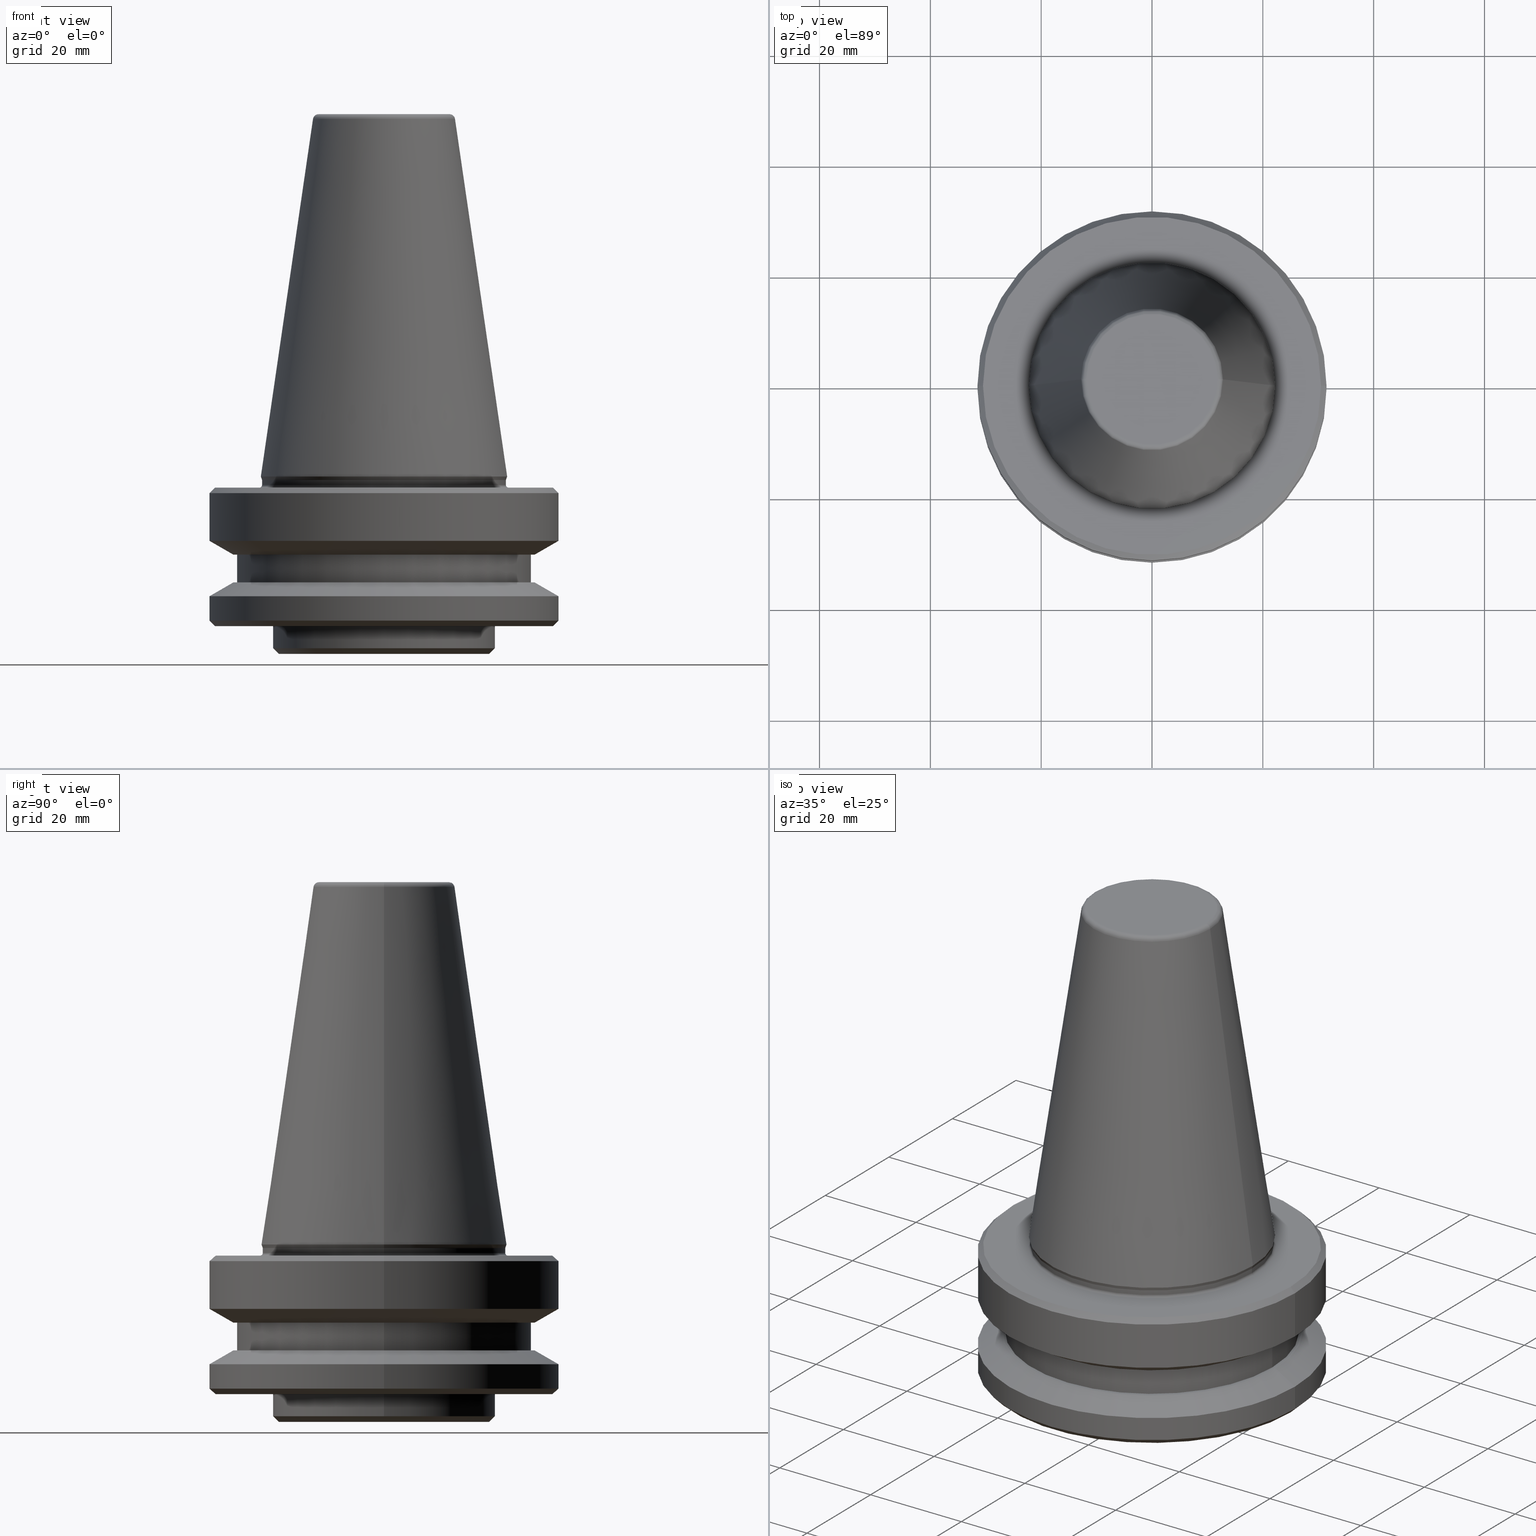
[diagram: canonical four-view strip — front | top / right | iso, engineering-drawing reading convention]
A machine part, canonical four-view strip (front | top / right | iso — engineering-drawing reading convention). The complete STEP part file that produces these views, byte-faithful:
ISO-10303-21;
HEADER;
FILE_DESCRIPTION (( 'STEP AP203' ),
    '1' );
FILE_NAME ('BT40 ER 32A 32 AD-6.3G 15000 SL.STEP',
    '2019-05-22T03:47:47',
    ( '' ),
    ( '' ),
    'SwSTEP 2.0',
    'SolidWorks 2014',
    '' );
FILE_SCHEMA (( 'CONFIG_CONTROL_DESIGN' ));
ENDSEC;

DATA;
#1 = ORIENTED_EDGE ( 'NONE', *, *, #984, .F. ) ;
#2 = CARTESIAN_POINT ( 'NONE',  ( 0.0000000000000000000, 30.49999915511084900, -27.00000000000551000 ) ) ;
#3 = CARTESIAN_POINT ( 'NONE',  ( -11.82266927716813000, 1.508450817090343500E-015, 65.39999999999945100 ) ) ;
#4 = VECTOR ( 'NONE', #241, 1000.000000000000000 ) ;
#5 = VECTOR ( 'NONE', #141, 1000.000000000000000 ) ;
#6 = EDGE_CURVE ( 'NONE', #342, #223, #177, .T. ) ;
#7 = CARTESIAN_POINT ( 'NONE',  ( 0.0000000000000000000, 18.99749373435000200, -31.99561889958393800 ) ) ;
#8 = DIRECTION ( 'NONE',  ( -0.0000000000000000000, -0.0000000000000000000, 1.000000000000000000 ) ) ;
#9 = DIRECTION ( 'NONE',  ( 1.000000000000000000, 0.0000000000000000000, 0.0000000000000000000 ) ) ;
#10 = CC_DESIGN_PERSON_AND_ORGANIZATION_ASSIGNMENT ( #92, #943, ( #855 ) ) ;
#11 = CARTESIAN_POINT ( 'NONE',  ( 0.0000000000000000000, 0.0000000000000000000, -26.00000000000535000 ) ) ;
#12 = APPROVAL_ROLE ( '' ) ;
#13 = VERTEX_POINT ( 'NONE', #213 ) ;
#14 = SECURITY_CLASSIFICATION_LEVEL ( 'unclassified' ) ;
#15 = DIRECTION ( 'NONE',  ( 0.8660254037844413700, 0.0000000000000000000, 0.4999999999999952800 ) ) ;
#16 = ORIENTED_EDGE ( 'NONE', *, *, #367, .F. ) ;
#17 = DIRECTION ( 'NONE',  ( -0.0000000000000000000, -0.0000000000000000000, 1.000000000000000000 ) ) ;
#18 = ORIENTED_EDGE ( 'NONE', *, *, #546, .T. ) ;
#19 = DIRECTION ( 'NONE',  ( 1.000000000000000000, 0.0000000000000000000, 0.0000000000000000000 ) ) ;
#20 = AXIS2_PLACEMENT_3D ( 'NONE', #306, #633, #231 ) ;
#21 = CIRCLE ( 'NONE', #917, 0.5000000000000559600 ) ;
#22 = AXIS2_PLACEMENT_3D ( 'NONE', #815, #612, #372 ) ;
#23 = DIRECTION ( 'NONE',  ( -0.0000000000000000000, -0.0000000000000000000, 1.000000000000000000 ) ) ;
#24 = CARTESIAN_POINT ( 'NONE',  ( 0.0000000000000000000, 0.0000000000000000000, -31.99561889958393800 ) ) ;
#25 = DIRECTION ( 'NONE',  ( -0.0000000000000000000, -0.0000000000000000000, 1.000000000000000000 ) ) ;
#26 = CARTESIAN_POINT ( 'NONE',  ( 0.0000000000000000000, 0.0000000000000000000, 0.0000000000000000000 ) ) ;
#27 = EDGE_LOOP ( 'NONE', ( #424, #263, #83, #907 ) ) ;
#28 = DIRECTION ( 'NONE',  ( -0.0000000000000000000, -0.0000000000000000000, 1.000000000000000000 ) ) ;
#29 = CARTESIAN_POINT ( 'NONE',  ( 0.0000000000000000000, 0.0000000000000000000, 65.39999999999945100 ) ) ;
#30 = LINE ( 'NONE', #798, #4 ) ;
#31 = DIRECTION ( 'NONE',  ( -1.000000000000000000, 0.0000000000000000000, -0.0000000000000000000 ) ) ;
#32 = EDGE_LOOP ( 'NONE', ( #494, #262, #782, #604 ) ) ;
#33 = LINE ( 'NONE', #559, #825 ) ;
#34 = AXIS2_PLACEMENT_3D ( 'NONE', #118, #506, #271 ) ;
#35 = EDGE_CURVE ( 'NONE', #527, #62, #381, .T. ) ;
#36 = DIRECTION ( 'NONE',  ( -1.000000000000000000, 0.0000000000000000000, 0.0000000000000000000 ) ) ;
#37 = DIRECTION ( 'NONE',  ( 1.000000000000000000, 0.0000000000000000000, 0.0000000000000000000 ) ) ;
#38 = DIRECTION ( 'NONE',  ( 0.7071067811865414700, 0.0000000000000000000, 0.7071067811865536800 ) ) ;
#39 = ORIENTED_EDGE ( 'NONE', *, *, #70, .T. ) ;
#40 = AXIS2_PLACEMENT_3D ( 'NONE', #80, #406, #364 ) ;
#41 = ORIENTED_EDGE ( 'NONE', *, *, #465, .T. ) ;
#42 = MECHANICAL_CONTEXT ( 'NONE', #795, 'mechanical' ) ;
#43 = EDGE_LOOP ( 'NONE', ( #75, #661, #72, #745 ) ) ;
#44 = CYLINDRICAL_SURFACE ( 'NONE', #702, 26.49999999999996800 ) ;
#45 = DIRECTION ( 'NONE',  ( -0.0000000000000000000, -0.0000000000000000000, 1.000000000000000000 ) ) ;
#46 = EDGE_CURVE ( 'NONE', #403, #274, #564, .T. ) ;
#47 = CARTESIAN_POINT ( 'NONE',  ( 0.0000000000000000000, 0.0000000000000000000, -14.10000000000089000 ) ) ;
#48 = LOCAL_TIME ( 9, 17, 47.00000000000000000, #243 ) ;
#49 = AXIS2_PLACEMENT_3D ( 'NONE', #762, #252, #726 ) ;
#50 = VERTEX_POINT ( 'NONE', #351 ) ;
#51 = EDGE_LOOP ( 'NONE', ( #404, #921, #39, #500 ) ) ;
#52 = EDGE_CURVE ( 'NONE', #195, #274, #156, .T. ) ;
#53 = CARTESIAN_POINT ( 'NONE',  ( 0.0000000000000000000, 0.0000000000000000000, 4.440892098500626200E-013 ) ) ;
#54 = CIRCLE ( 'NONE', #998, 30.49999999999997200 ) ;
#55 = CONICAL_SURFACE ( 'NONE', #718, 22.22500000000016100, 0.1448138077623193600 ) ;
#56 = ADVANCED_FACE ( 'NONE', ( #355 ), #739, .F. ) ;
#57 = CARTESIAN_POINT ( 'NONE',  ( -27.16962617403466900, 0.0000000000000000000, -19.10000077622331500 ) ) ;
#58 = AXIS2_PLACEMENT_3D ( 'NONE', #2, #561, #685 ) ;
#59 = ADVANCED_FACE ( 'NONE', ( #334 ), #924, .T. ) ;
#60 = ORIENTED_EDGE ( 'NONE', *, *, #540, .F. ) ;
#61 = CC_DESIGN_PERSON_AND_ORGANIZATION_ASSIGNMENT ( #886, #473, ( #855 ) ) ;
#62 = VERTEX_POINT ( 'NONE', #856 ) ;
#63 = VERTEX_POINT ( 'NONE', #593 ) ;
#64 = FACE_OUTER_BOUND ( 'NONE', #769, .T. ) ;
#65 = DIRECTION ( 'NONE',  ( 0.0000000000000000000, 0.0000000000000000000, -1.000000000000000000 ) ) ;
#66 = CARTESIAN_POINT ( 'NONE',  ( 0.0000000000000000000, 0.0000000000000000000, -14.10000000000089000 ) ) ;
#67 = AXIS2_PLACEMENT_3D ( 'NONE', #677, #218, #97 ) ;
#68 = PLANE ( 'NONE',  #189 ) ;
#69 = CALENDAR_DATE ( 2019, 22, 5 ) ;
#70 = EDGE_CURVE ( 'NONE', #247, #428, #713, .T. ) ;
#71 = ORIENTED_EDGE ( 'NONE', *, *, #222, .F. ) ;
#72 = ORIENTED_EDGE ( 'NONE', *, *, #147, .F. ) ;
#73 = DIRECTION ( 'NONE',  ( -0.0000000000000000000, -0.0000000000000000000, 1.000000000000000000 ) ) ;
#74 = VECTOR ( 'NONE', #932, 1000.000000000000000 ) ;
#75 = ORIENTED_EDGE ( 'NONE', *, *, #940, .T. ) ;
#76 = CIRCLE ( 'NONE', #82, 21.99999999999990800 ) ;
#77 = CARTESIAN_POINT ( 'NONE',  ( 31.49999915511100200, 0.0000000000000000000, -21.60014278253921600 ) ) ;
#78 = DIRECTION ( 'NONE',  ( 1.224646799147353200E-016, 1.000000000000000000, 0.0000000000000000000 ) ) ;
#79 = AXIS2_PLACEMENT_3D ( 'NONE', #885, #966, #420 ) ;
#80 = CARTESIAN_POINT ( 'NONE',  ( 22.40000000000019800, 0.0000000000000000000, -0.6887132116606409200 ) ) ;
#81 = VECTOR ( 'NONE', #38, 1000.000000000000000 ) ;
#82 = AXIS2_PLACEMENT_3D ( 'NONE', #670, #196, #813 ) ;
#83 = ORIENTED_EDGE ( 'NONE', *, *, #952, .T. ) ;
#84 = DIRECTION ( 'NONE',  ( -0.0000000000000000000, -0.0000000000000000000, 1.000000000000000000 ) ) ;
#85 = ORIENTED_EDGE ( 'NONE', *, *, #104, .T. ) ;
#86 = ORIENTED_EDGE ( 'NONE', *, *, #810, .F. ) ;
#87 = CONICAL_SURFACE ( 'NONE', #398, 18.99749373435000200, 0.7853981633974482800 ) ;
#88 = AXIS2_PLACEMENT_3D ( 'NONE', #811, #317, #863 ) ;
#89 = DIRECTION ( 'NONE',  ( -1.000000000000000000, 0.0000000000000000000, -0.0000000000000000000 ) ) ;
#90 = VERTEX_POINT ( 'NONE', #93 ) ;
#91 =( LENGTH_UNIT ( ) NAMED_UNIT ( * ) SI_UNIT ( .MILLI., .METRE. ) );
#92 = PERSON_AND_ORGANIZATION ( #592, #396 ) ;
#93 = CARTESIAN_POINT ( 'NONE',  ( 22.02412295168571200, 0.0000000000000000000, -0.5519051543304703800 ) ) ;
#94 = DIRECTION ( 'NONE',  ( -0.0000000000000000000, -0.0000000000000000000, 1.000000000000000000 ) ) ;
#95 = ORIENTED_EDGE ( 'NONE', *, *, #200, .T. ) ;
#96 = DIRECTION ( 'NONE',  ( -0.0000000000000000000, -0.0000000000000000000, 1.000000000000000000 ) ) ;
#97 = DIRECTION ( 'NONE',  ( 1.000000000000000000, 0.0000000000000000000, 0.0000000000000000000 ) ) ;
#98 = ORIENTED_EDGE ( 'NONE', *, *, #46, .F. ) ;
#99 = CARTESIAN_POINT ( 'NONE',  ( 0.0000000000000000000, 11.82266927716813000, 65.39999999999946600 ) ) ;
#100 = AXIS2_PLACEMENT_3D ( 'NONE', #445, #696, #934 ) ;
#101 = CYLINDRICAL_SURFACE ( 'NONE', #680, 31.50000000000008500 ) ;
#102 = VERTEX_POINT ( 'NONE', #468 ) ;
#103 = VECTOR ( 'NONE', #384, 1000.000000000000000 ) ;
#104 = EDGE_CURVE ( 'NONE', #63, #303, #128, .T. ) ;
#105 = DIRECTION ( 'NONE',  ( 0.0000000000000000000, -1.000000000000000000, 0.0000000000000000000 ) ) ;
#106 = TOROIDAL_SURFACE ( 'NONE', #34, 22.49999999999996400, 0.5000000000000559600 ) ;
#107 = DIRECTION ( 'NONE',  ( 0.0000000000000000000, 0.0000000000000000000, -1.000000000000000000 ) ) ;
#108 = EDGE_CURVE ( 'NONE', #842, #318, #975, .T. ) ;
#109 = DIRECTION ( 'NONE',  ( 1.000000000000000000, 0.0000000000000000000, 0.0000000000000000000 ) ) ;
#110 = ORIENTED_EDGE ( 'NONE', *, *, #440, .T. ) ;
#111 = CIRCLE ( 'NONE', #570, 22.00000000000002100 ) ;
#112 = DIRECTION ( 'NONE',  ( -0.0000000000000000000, -0.0000000000000000000, 1.000000000000000000 ) ) ;
#113 = VERTEX_POINT ( 'NONE', #758 ) ;
#114 = LINE ( 'NONE', #467, #501 ) ;
#115 = SECURITY_CLASSIFICATION ( '', '', #14 ) ;
#116 = ORIENTED_EDGE ( 'NONE', *, *, #520, .T. ) ;
#117 = DIRECTION ( 'NONE',  ( 0.7071067811866259500, 8.659560562355891800E-017, -0.7071067811864690800 ) ) ;
#118 = CARTESIAN_POINT ( 'NONE',  ( 0.0000000000000000000, 0.0000000000000000000, -1.500000000001389100 ) ) ;
#119 = COORDINATED_UNIVERSAL_TIME_OFFSET ( 5, 30, .AHEAD. ) ;
#120 = DIRECTION ( 'NONE',  ( 1.000000000000000000, 0.0000000000000000000, 0.0000000000000000000 ) ) ;
#121 = AXIS2_PLACEMENT_3D ( 'NONE', #298, #736, #838 ) ;
#122 = CARTESIAN_POINT ( 'NONE',  ( 0.0000000000000000000, 0.0000000000000000000, -27.00000000000552100 ) ) ;
#123 = EDGE_LOOP ( 'NONE', ( #219, #560, #60, #723 ) ) ;
#124 = AXIS2_PLACEMENT_3D ( 'NONE', #459, #915, #827 ) ;
#125 = ORIENTED_EDGE ( 'NONE', *, *, #933, .T. ) ;
#126 = DIRECTION ( 'NONE',  ( -0.0000000000000000000, -0.0000000000000000000, 1.000000000000000000 ) ) ;
#127 = LINE ( 'NONE', #471, #487 ) ;
#128 = CIRCLE ( 'NONE', #348, 19.99999999999998900 ) ;
#129 = CARTESIAN_POINT ( 'NONE',  ( 0.0000000000000000000, 0.0000000000000000000, 102.7767479270557900 ) ) ;
#130 = EDGE_CURVE ( 'NONE', #303, #277, #304, .T. ) ;
#131 = ADVANCED_FACE ( 'NONE', ( #687 ), #282, .T. ) ;
#132 = CIRCLE ( 'NONE', #930, 22.02412295168571200 ) ;
#133 = DIRECTION ( 'NONE',  ( -0.0000000000000000000, -0.0000000000000000000, 1.000000000000000000 ) ) ;
#134 = CARTESIAN_POINT ( 'NONE',  ( 0.0000000000000000000, 0.0000000000000000000, -2.000000000001556100 ) ) ;
#135 = AXIS2_PLACEMENT_3D ( 'NONE', #129, #254, #861 ) ;
#136 = DESIGN_CONTEXT ( 'detailed design', #785, 'design' ) ;
#137 = ORIENTED_EDGE ( 'NONE', *, *, #756, .F. ) ;
#138 = AXIS2_PLACEMENT_3D ( 'NONE', #410, #311, #720 ) ;
#139 = ADVANCED_FACE ( 'NONE', ( #897 ), #464, .T. ) ;
#140 = EDGE_LOOP ( 'NONE', ( #484, #803, #650, #768 ) ) ;
#141 = DIRECTION ( 'NONE',  ( -0.3420201433255195500, 4.188538737675165100E-017, 0.9396926207859627200 ) ) ;
#142 = LINE ( 'NONE', #714, #639 ) ;
#143 = CIRCLE ( 'NONE', #233, 26.49999999999996800 ) ;
#144 = DIRECTION ( 'NONE',  ( 1.000000000000000000, 0.0000000000000000000, 0.0000000000000000000 ) ) ;
#145 = EDGE_LOOP ( 'NONE', ( #530, #437, #735, #1 ) ) ;
#146 = ADVANCED_FACE ( 'NONE', ( #490 ), #55, .T. ) ;
#147 = EDGE_CURVE ( 'NONE', #675, #586, #253, .T. ) ;
#148 = DIRECTION ( 'NONE',  ( -0.0000000000000000000, -0.0000000000000000000, 1.000000000000000000 ) ) ;
#149 = LOCAL_TIME ( 9, 17, 47.00000000000000000, #347 ) ;
#150 = ORIENTED_EDGE ( 'NONE', *, *, #159, .F. ) ;
#151 = CARTESIAN_POINT ( 'NONE',  ( -31.50000000000008500, 3.857637417314172900E-015, 102.7767479270557900 ) ) ;
#152 = EDGE_CURVE ( 'NONE', #780, #259, #662, .T. ) ;
#153 = ORIENTED_EDGE ( 'NONE', *, *, #159, .T. ) ;
#154 = VECTOR ( 'NONE', #419, 1000.000000000000000 ) ;
#155 = PLANE ( 'NONE',  #737 ) ;
#156 = LINE ( 'NONE', #1000, #949 ) ;
#157 = AXIS2_PLACEMENT_3D ( 'NONE', #959, #148, #972 ) ;
#158 = CARTESIAN_POINT ( 'NONE',  ( 0.0000000000000000000, 0.0000000000000000000, 4.440892098500626200E-013 ) ) ;
#159 = EDGE_CURVE ( 'NONE', #403, #223, #541, .T. ) ;
#160 = LINE ( 'NONE', #245, #568 ) ;
#161 = CARTESIAN_POINT ( 'NONE',  ( -31.49999915511100200, 3.857637313845101900E-015, -26.00000000000535000 ) ) ;
#162 = ORIENTED_EDGE ( 'NONE', *, *, #165, .F. ) ;
#163 = ORIENTED_EDGE ( 'NONE', *, *, #6, .F. ) ;
#164 = ORIENTED_EDGE ( 'NONE', *, *, #108, .F. ) ;
#165 = EDGE_CURVE ( 'NONE', #873, #818, #76, .T. ) ;
#166 = LINE ( 'NONE', #866, #365 ) ;
#167 = FACE_BOUND ( 'NONE', #234, .T. ) ;
#168 = DIRECTION ( 'NONE',  ( -0.0000000000000000000, -0.0000000000000000000, 1.000000000000000000 ) ) ;
#169 = CC_DESIGN_PERSON_AND_ORGANIZATION_ASSIGNMENT ( #679, #427, ( #115 ) ) ;
#170 = CALENDAR_DATE ( 2019, 22, 5 ) ;
#171 = ORIENTED_EDGE ( 'NONE', *, *, #590, .F. ) ;
#172 = AXIS2_PLACEMENT_3D ( 'NONE', #688, #105, #941 ) ;
#173 = CARTESIAN_POINT ( 'NONE',  ( 26.49999999999996800, 0.0000000000000000000, 102.7767479270557900 ) ) ;
#174 = ORIENTED_EDGE ( 'NONE', *, *, #382, .F. ) ;
#175 = LINE ( 'NONE', #361, #154 ) ;
#176 = EDGE_CURVE ( 'NONE', #586, #675, #848, .T. ) ;
#177 = CIRCLE ( 'NONE', #296, 31.50000000000008500 ) ;
#178 = DIRECTION ( 'NONE',  ( 1.000000000000000000, 0.0000000000000000000, 0.0000000000000000000 ) ) ;
#179 = CARTESIAN_POINT ( 'NONE',  ( 0.0000000000000000000, 0.0000000000000000000, 102.7767479270557900 ) ) ;
#180 = DIRECTION ( 'NONE',  ( -0.0000000000000000000, -0.0000000000000000000, 1.000000000000000000 ) ) ;
#181 = ORIENTED_EDGE ( 'NONE', *, *, #546, .F. ) ;
#182 = ORIENTED_EDGE ( 'NONE', *, *, #457, .T. ) ;
#183 = DIRECTION ( 'NONE',  ( 1.000000000000000000, 0.0000000000000000000, 0.0000000000000000000 ) ) ;
#184 = CARTESIAN_POINT ( 'NONE',  ( 0.0000000000000000000, 0.0000000000000000000, 65.39999999999945100 ) ) ;
#185 = AXIS2_PLACEMENT_3D ( 'NONE', #589, #126, #721 ) ;
#186 = FACE_OUTER_BOUND ( 'NONE', #707, .T. ) ;
#187 = FACE_OUTER_BOUND ( 'NONE', #970, .T. ) ;
#188 = EDGE_CURVE ( 'NONE', #277, #699, #640, .T. ) ;
#189 = AXIS2_PLACEMENT_3D ( 'NONE', #532, #638, #31 ) ;
#190 = PERSON_AND_ORGANIZATION ( #592, #396 ) ;
#191 = APPLICATION_PROTOCOL_DEFINITION ( 'international standard', 'config_control_design', 1994, #785 ) ;
#192 = AXIS2_PLACEMENT_3D ( 'NONE', #871, #28, #602 ) ;
#193 = DIRECTION ( 'NONE',  ( 0.0000000000000000000, -0.0000000000000000000, 1.000000000000000000 ) ) ;
#194 = DIRECTION ( 'NONE',  ( -0.0000000000000000000, -0.0000000000000000000, 1.000000000000000000 ) ) ;
#195 = VERTEX_POINT ( 'NONE', #246 ) ;
#196 = DIRECTION ( 'NONE',  ( -0.0000000000000000000, -0.0000000000000000000, 1.000000000000000000 ) ) ;
#197 = ORIENTED_EDGE ( 'NONE', *, *, #46, .T. ) ;
#198 = CIRCLE ( 'NONE', #20, 0.4000000000000808500 ) ;
#199 = DIRECTION ( 'NONE',  ( 1.000000000000000000, 0.0000000000000000000, 0.0000000000000000000 ) ) ;
#200 = EDGE_CURVE ( 'NONE', #515, #482, #33, .T. ) ;
#201 = AXIS2_PLACEMENT_3D ( 'NONE', #370, #17, #791 ) ;
#202 = DIRECTION ( 'NONE',  ( 1.000000000000000000, 0.0000000000000000000, 0.0000000000000000000 ) ) ;
#203 = ORIENTED_EDGE ( 'NONE', *, *, #331, .F. ) ;
#204 = ADVANCED_FACE ( 'NONE', ( #874 ), #621, .F. ) ;
#205 = CARTESIAN_POINT ( 'NONE',  ( -31.50000000000008500, 3.857637417314172900E-015, -3.000000000001446000 ) ) ;
#206 = EDGE_LOOP ( 'NONE', ( #562, #182, #374, #430 ) ) ;
#207 = CIRCLE ( 'NONE', #305, 26.49999999999996800 ) ;
#208 = FACE_OUTER_BOUND ( 'NONE', #460, .T. ) ;
#209 = DIRECTION ( 'NONE',  ( 1.000000000000000000, 0.0000000000000000000, 0.0000000000000000000 ) ) ;
#210 = ADVANCED_FACE ( 'NONE', ( #208 ), #393, .T. ) ;
#211 = EDGE_CURVE ( 'NONE', #818, #873, #599, .T. ) ;
#212 = CARTESIAN_POINT ( 'NONE',  ( 27.16962617403466900, 3.592478443325636300E-015, -19.10000077622331500 ) ) ;
#213 = CARTESIAN_POINT ( 'NONE',  ( -12.81220206925781600, 0.0000000000000000000, 64.54430818888745600 ) ) ;
#214 = ADVANCED_FACE ( 'NONE', ( #444 ), #773, .T. ) ;
#215 = CARTESIAN_POINT ( 'NONE',  ( -18.99749373435000200, 2.326521989359362700E-015, -31.99561889958393800 ) ) ;
#216 = CC_DESIGN_DATE_AND_TIME_ASSIGNMENT ( #865, #800, ( #115 ) ) ;
#217 = VERTEX_POINT ( 'NONE', #953 ) ;
#218 = DIRECTION ( 'NONE',  ( 0.0000000000000000000, -0.0000000000000000000, 1.000000000000000000 ) ) ;
#219 = ORIENTED_EDGE ( 'NONE', *, *, #689, .T. ) ;
#220 = FACE_OUTER_BOUND ( 'NONE', #857, .T. ) ;
#221 = AXIS2_PLACEMENT_3D ( 'NONE', #851, #521, #591 ) ;
#222 = EDGE_CURVE ( 'NONE', #319, #515, #799, .T. ) ;
#223 = VERTEX_POINT ( 'NONE', #205 ) ;
#224 = FACE_OUTER_BOUND ( 'NONE', #32, .T. ) ;
#225 = DIRECTION ( 'NONE',  ( 1.000000000000000000, 0.0000000000000000000, 0.0000000000000000000 ) ) ;
#226 = ORIENTED_EDGE ( 'NONE', *, *, #925, .T. ) ;
#227 = CIRCLE ( 'NONE', #40, 0.4000000000000795700 ) ;
#228 = AXIS2_PLACEMENT_3D ( 'NONE', #184, #480, #340 ) ;
#229 = DIRECTION ( 'NONE',  ( 1.000000000000000000, 0.0000000000000000000, 0.0000000000000000000 ) ) ;
#230 = CARTESIAN_POINT ( 'NONE',  ( 19.99999999999998900, 0.0000000000000000000, 83.99096479192306200 ) ) ;
#231 = DIRECTION ( 'NONE',  ( -1.000000000000000000, 1.224646799147349500E-016, 0.0000000000000000000 ) ) ;
#232 = CARTESIAN_POINT ( 'NONE',  ( 0.0000000000000000000, 0.0000000000000000000, -21.60014278253921600 ) ) ;
#233 = AXIS2_PLACEMENT_3D ( 'NONE', #47, #693, #905 ) ;
#234 = EDGE_LOOP ( 'NONE', ( #137, #171 ) ) ;
#235 = DIRECTION ( 'NONE',  ( 0.0000000000000000000, 0.0000000000000000000, -1.000000000000000000 ) ) ;
#236 = EDGE_CURVE ( 'NONE', #50, #586, #418, .T. ) ;
#237 = CARTESIAN_POINT ( 'NONE',  ( 0.0000000000000000000, 0.0000000000000000000, 64.39999999999912500 ) ) ;
#238 = ORIENTED_EDGE ( 'NONE', *, *, #337, .T. ) ;
#239 = CIRCLE ( 'NONE', #805, 31.49999915511100200 ) ;
#240 = CARTESIAN_POINT ( 'NONE',  ( 0.0000000000000000000, 0.0000000000000000000, 102.7767479270557900 ) ) ;
#241 = DIRECTION ( 'NONE',  ( -0.0000000000000000000, -0.0000000000000000000, 1.000000000000000000 ) ) ;
#242 = DATE_TIME_ROLE ( 'creation_date' ) ;
#243 = COORDINATED_UNIVERSAL_TIME_OFFSET ( 5, 30, .AHEAD. ) ;
#244 = CARTESIAN_POINT ( 'NONE',  ( -21.99999999999996400, 2.694222958124172500E-015, 102.7767479270557900 ) ) ;
#245 = CARTESIAN_POINT ( 'NONE',  ( 31.50000000000008500, 0.0000000000000000000, 102.7767479270557900 ) ) ;
#246 = CARTESIAN_POINT ( 'NONE',  ( 27.16962701892278200, 0.0000000000000000000, -14.10000000000089000 ) ) ;
#247 = VERTEX_POINT ( 'NONE', #829 ) ;
#248 = CARTESIAN_POINT ( 'NONE',  ( 31.50000000000008500, 3.857637417314172900E-015, -3.000000000001446000 ) ) ;
#249 = AXIS2_PLACEMENT_3D ( 'NONE', #622, #573, #657 ) ;
#250 = CYLINDRICAL_SURFACE ( 'NONE', #892, 21.99999999999996400 ) ;
#251 = EDGE_CURVE ( 'NONE', #90, #217, #227, .T. ) ;
#252 = DIRECTION ( 'NONE',  ( -0.0000000000000000000, -0.0000000000000000000, 1.000000000000000000 ) ) ;
#253 = CIRCLE ( 'NONE', #572, 22.22500000000016100 ) ;
#254 = DIRECTION ( 'NONE',  ( -0.0000000000000000000, -0.0000000000000000000, 1.000000000000000000 ) ) ;
#255 = CARTESIAN_POINT ( 'NONE',  ( 18.99749373435000200, 0.0000000000000000000, -31.99561889958393800 ) ) ;
#256 = VECTOR ( 'NONE', #888, 1000.000000000000000 ) ;
#257 = AXIS2_PLACEMENT_3D ( 'NONE', #66, #751, #663 ) ;
#258 = ORIENTED_EDGE ( 'NONE', *, *, #483, .T. ) ;
#259 = VERTEX_POINT ( 'NONE', #255 ) ;
#260 = DIRECTION ( 'NONE',  ( -0.0000000000000000000, -0.0000000000000000000, 1.000000000000000000 ) ) ;
#261 = APPROVAL ( #665, 'UNSPECIFIED' ) ;
#262 = ORIENTED_EDGE ( 'NONE', *, *, #666, .T. ) ;
#263 = ORIENTED_EDGE ( 'NONE', *, *, #165, .T. ) ;
#264 = VECTOR ( 'NONE', #617, 1000.000000000000000 ) ;
#265 = PLANE ( 'NONE',  #67 ) ;
#266 = CARTESIAN_POINT ( 'NONE',  ( 0.0000000000000000000, 0.0000000000000000000, -2.000000000001556100 ) ) ;
#267 = ORIENTED_EDGE ( 'NONE', *, *, #52, .T. ) ;
#268 = DIRECTION ( 'NONE',  ( -1.000000000000000000, 1.224646799147353900E-016, 0.0000000000000000000 ) ) ;
#269 = AXIS2_PLACEMENT_3D ( 'NONE', #369, #8, #379 ) ;
#270 = LOCAL_TIME ( 9, 17, 47.00000000000000000, #478 ) ;
#271 = DIRECTION ( 'NONE',  ( 1.000000000000000000, 0.0000000000000000000, 0.0000000000000000000 ) ) ;
#272 = EDGE_CURVE ( 'NONE', #102, #881, #578, .T. ) ;
#273 = CARTESIAN_POINT ( 'NONE',  ( 0.0000000000000000000, 0.0000000000000000000, -19.10000077622331500 ) ) ;
#274 = VERTEX_POINT ( 'NONE', #788 ) ;
#275 = CARTESIAN_POINT ( 'NONE',  ( 0.0000000000000000000, 0.0000000000000000000, 102.7767479270557900 ) ) ;
#276 = ORIENTED_EDGE ( 'NONE', *, *, #849, .F. ) ;
#277 = VERTEX_POINT ( 'NONE', #547 ) ;
#278 = DIRECTION ( 'NONE',  ( -0.0000000000000000000, -0.0000000000000000000, 1.000000000000000000 ) ) ;
#279 = CIRCLE ( 'NONE', #840, 30.49999999999997200 ) ;
#280 = ORIENTED_EDGE ( 'NONE', *, *, #971, .T. ) ;
#281 = ADVANCED_FACE ( 'NONE', ( #187 ), #749, .T. ) ;
#282 = CYLINDRICAL_SURFACE ( 'NONE', #453, 21.99999999999996400 ) ;
#283 = EDGE_CURVE ( 'NONE', #13, #527, #961, .T. ) ;
#284 = CARTESIAN_POINT ( 'NONE',  ( 0.0000000000000000000, 0.0000000000000000000, -31.99561889958393800 ) ) ;
#285 = ORIENTED_EDGE ( 'NONE', *, *, #796, .T. ) ;
#286 = ADVANCED_FACE ( 'NONE', ( #366, #985 ), #407, .F. ) ;
#287 = LINE ( 'NONE', #510, #81 ) ;
#288 =( GEOMETRIC_REPRESENTATION_CONTEXT ( 3 ) GLOBAL_UNCERTAINTY_ASSIGNED_CONTEXT ( ( #388 ) ) GLOBAL_UNIT_ASSIGNED_CONTEXT ( ( #91, #356, #438 ) ) REPRESENTATION_CONTEXT ( 'NONE', 'WORKASPACE' ) );
#289 = CARTESIAN_POINT ( 'NONE',  ( -30.49999915511084900, 3.735172633930347800E-015, -27.00000000000552100 ) ) ;
#290 = EDGE_LOOP ( 'NONE', ( #439, #504, #486, #328 ) ) ;
#291 = ADVANCED_FACE ( 'NONE', ( #167, #938 ), #68, .F. ) ;
#292 = EDGE_LOOP ( 'NONE', ( #889, #712 ) ) ;
#293 = AXIS2_PLACEMENT_3D ( 'NONE', #777, #719, #525 ) ;
#294 = CIRCLE ( 'NONE', #449, 18.99749373435000200 ) ;
#295 = DIRECTION ( 'NONE',  ( 0.0000000000000000000, -1.000000000000000000, 0.0000000000000000000 ) ) ;
#296 = AXIS2_PLACEMENT_3D ( 'NONE', #508, #194, #852 ) ;
#297 = ORIENTED_EDGE ( 'NONE', *, *, #236, .F. ) ;
#298 = CARTESIAN_POINT ( 'NONE',  ( 0.0000000000000000000, 0.0000000000000000000, -21.60014278253921600 ) ) ;
#299 = APPROVAL_DATE_TIME ( #505, #910 ) ;
#300 = ORIENTED_EDGE ( 'NONE', *, *, #540, .T. ) ;
#301 = PLANE ( 'NONE',  #754 ) ;
#302 = CONICAL_SURFACE ( 'NONE', #481, 27.16962701892278200, 1.047197551196603200 ) ;
#303 = VERTEX_POINT ( 'NONE', #774 ) ;
#304 = LINE ( 'NONE', #997, #103 ) ;
#305 = AXIS2_PLACEMENT_3D ( 'NONE', #535, #423, #783 ) ;
#306 = CARTESIAN_POINT ( 'NONE',  ( -22.40000000000019800, 2.743208830090095500E-015, -0.6887132116606409200 ) ) ;
#307 = DIRECTION ( 'NONE',  ( 1.000000000000000000, 0.0000000000000000000, 0.0000000000000000000 ) ) ;
#308 = AXIS2_PLACEMENT_3D ( 'NONE', #240, #133, #819 ) ;
#309 = DIRECTION ( 'NONE',  ( -0.0000000000000000000, -0.0000000000000000000, 1.000000000000000000 ) ) ;
#310 = LINE ( 'NONE', #734, #256 ) ;
#311 = DIRECTION ( 'NONE',  ( -0.0000000000000000000, -0.0000000000000000000, 1.000000000000000000 ) ) ;
#312 = ORIENTED_EDGE ( 'NONE', *, *, #565, .F. ) ;
#313 = EDGE_CURVE ( 'NONE', #881, #102, #553, .T. ) ;
#314 = DIRECTION ( 'NONE',  ( 0.8660254037844387100, 1.060575238724906900E-016, -0.4999999999999998900 ) ) ;
#315 = VECTOR ( 'NONE', #512, 1000.000000000000000 ) ;
#316 = CARTESIAN_POINT ( 'NONE',  ( -31.49999915511100200, 3.857637313845101900E-015, 102.7767479270557900 ) ) ;
#317 = DIRECTION ( 'NONE',  ( -0.0000000000000000000, -0.0000000000000000000, 1.000000000000000000 ) ) ;
#318 = VERTEX_POINT ( 'NONE', #391 ) ;
#319 = VERTEX_POINT ( 'NONE', #57 ) ;
#320 = FACE_OUTER_BOUND ( 'NONE', #697, .T. ) ;
#321 = CARTESIAN_POINT ( 'NONE',  ( 31.50000000000008500, 0.0000000000000000000, -3.000000000001446000 ) ) ;
#322 = APPROVAL_STATUS ( 'not_yet_approved' ) ;
#323 = CC_DESIGN_APPROVAL ( #261, ( #115 ) ) ;
#324 = ORIENTED_EDGE ( 'NONE', *, *, #6, .T. ) ;
#325 = PLANE ( 'NONE',  #716 ) ;
#326 = APPROVAL_PERSON_ORGANIZATION ( #536, #910, #12 ) ;
#327 = AXIS2_PLACEMENT_3D ( 'NONE', #891, #463, #887 ) ;
#328 = ORIENTED_EDGE ( 'NONE', *, *, #360, .T. ) ;
#329 = ORIENTED_EDGE ( 'NONE', *, *, #957, .T. ) ;
#330 = DIRECTION ( 'NONE',  ( 1.000000000000000000, 0.0000000000000000000, 0.0000000000000000000 ) ) ;
#331 = EDGE_CURVE ( 'NONE', #428, #627, #143, .T. ) ;
#332 = DIRECTION ( 'NONE',  ( -0.0000000000000000000, -0.0000000000000000000, 1.000000000000000000 ) ) ;
#333 = CIRCLE ( 'NONE', #588, 1.000000000000314900 ) ;
#334 = FACE_OUTER_BOUND ( 'NONE', #51, .T. ) ;
#335 = DIRECTION ( 'NONE',  ( -0.7071067811866259500, 0.0000000000000000000, -0.7071067811864690800 ) ) ;
#336 = DIRECTION ( 'NONE',  ( -1.000000000000000000, 0.0000000000000000000, -0.0000000000000000000 ) ) ;
#337 = EDGE_CURVE ( 'NONE', #527, #13, #724, .T. ) ;
#338 = DIRECTION ( 'NONE',  ( 1.000000000000000000, 0.0000000000000000000, 0.0000000000000000000 ) ) ;
#339 = CONICAL_SURFACE ( 'NONE', #766, 30.49999915511084900, 0.7853981633974396200 ) ;
#340 = DIRECTION ( 'NONE',  ( 1.000000000000000000, 0.0000000000000000000, 0.0000000000000000000 ) ) ;
#341 = CARTESIAN_POINT ( 'NONE',  ( 0.0000000000000000000, 0.0000000000000000000, -27.00000000000552100 ) ) ;
#342 = VERTEX_POINT ( 'NONE', #321 ) ;
#343 = LINE ( 'NONE', #289, #315 ) ;
#344 = DIRECTION ( 'NONE',  ( 1.000000000000000000, 0.0000000000000000000, 0.0000000000000000000 ) ) ;
#345 = LINE ( 'NONE', #652, #264 ) ;
#346 = AXIS2_PLACEMENT_3D ( 'NONE', #814, #394, #9 ) ;
#347 = COORDINATED_UNIVERSAL_TIME_OFFSET ( 5, 30, .AHEAD. ) ;
#348 = AXIS2_PLACEMENT_3D ( 'NONE', #517, #906, #144 ) ;
#349 = DIRECTION ( 'NONE',  ( -0.0000000000000000000, -0.0000000000000000000, 1.000000000000000000 ) ) ;
#350 = ORIENTED_EDGE ( 'NONE', *, *, #596, .T. ) ;
#351 = CARTESIAN_POINT ( 'NONE',  ( -22.02412295168571200, 2.697177167680967000E-015, -0.5519051543304703800 ) ) ;
#352 = EDGE_LOOP ( 'NONE', ( #755, #18, #390, #647 ) ) ;
#353 = CONICAL_SURFACE ( 'NONE', #221, 22.02412295168571200, 0.3490658503987071300 ) ;
#354 = DIRECTION ( 'NONE',  ( 0.0000000000000000000, 0.0000000000000000000, -1.000000000000000000 ) ) ;
#355 = FACE_OUTER_BOUND ( 'NONE', #794, .T. ) ;
#356 =( NAMED_UNIT ( * ) PLANE_ANGLE_UNIT ( ) SI_UNIT ( $, .RADIAN. ) );
#357 = DIRECTION ( 'NONE',  ( -0.0000000000000000000, -0.0000000000000000000, 1.000000000000000000 ) ) ;
#358 = AXIS2_PLACEMENT_3D ( 'NONE', #549, #767, #690 ) ;
#359 = CYLINDRICAL_SURFACE ( 'NONE', #822, 31.50000000000008500 ) ;
#360 = EDGE_CURVE ( 'NONE', #699, #277, #531, .T. ) ;
#361 = CARTESIAN_POINT ( 'NONE',  ( -31.49999915511100200, 0.0000000000000000000, -21.60014278253921600 ) ) ;
#362 = EDGE_LOOP ( 'NONE', ( #162, #258, #686, #817 ) ) ;
#363 = ADVANCED_FACE ( 'NONE', ( #320 ), #87, .T. ) ;
#364 = DIRECTION ( 'NONE',  ( 0.0000000000000000000, 0.0000000000000000000, -1.000000000000000000 ) ) ;
#365 = VECTOR ( 'NONE', #836, 999.9999999999998900 ) ;
#366 = FACE_OUTER_BOUND ( 'NONE', #399, .T. ) ;
#367 = EDGE_CURVE ( 'NONE', #787, #403, #114, .T. ) ;
#368 = ADVANCED_FACE ( 'NONE', ( #914 ), #700, .T. ) ;
#369 = CARTESIAN_POINT ( 'NONE',  ( 0.0000000000000000000, 0.0000000000000000000, -11.59985799368445900 ) ) ;
#370 = CARTESIAN_POINT ( 'NONE',  ( 0.0000000000000000000, 0.0000000000000000000, 83.99096479192306200 ) ) ;
#371 = LOCAL_TIME ( 9, 17, 47.00000000000000000, #580 ) ;
#372 = DIRECTION ( 'NONE',  ( 1.000000000000000000, 0.0000000000000000000, 0.0000000000000000000 ) ) ;
#373 = CC_DESIGN_SECURITY_CLASSIFICATION ( #115, ( #855 ) ) ;
#374 = ORIENTED_EDGE ( 'NONE', *, *, #896, .F. ) ;
#375 = ORIENTED_EDGE ( 'NONE', *, *, #440, .F. ) ;
#376 = ORIENTED_EDGE ( 'NONE', *, *, #130, .T. ) ;
#377 = AXIS2_PLACEMENT_3D ( 'NONE', #11, #812, #344 ) ;
#378 = VECTOR ( 'NONE', #112, 1000.000000000000000 ) ;
#379 = DIRECTION ( 'NONE',  ( 1.000000000000000000, 0.0000000000000000000, 0.0000000000000000000 ) ) ;
#380 = DIRECTION ( 'NONE',  ( 1.000000000000000000, 0.0000000000000000000, 0.0000000000000000000 ) ) ;
#381 = CIRCLE ( 'NONE', #400, 1.000000000000320200 ) ;
#382 = EDGE_CURVE ( 'NONE', #259, #780, #294, .T. ) ;
#383 = DIRECTION ( 'NONE',  ( -0.0000000000000000000, -0.0000000000000000000, 1.000000000000000000 ) ) ;
#384 = DIRECTION ( 'NONE',  ( -0.0000000000000000000, -0.0000000000000000000, 1.000000000000000000 ) ) ;
#385 = DIRECTION ( 'NONE',  ( 1.000000000000000000, 0.0000000000000000000, 0.0000000000000000000 ) ) ;
#386 = DIRECTION ( 'NONE',  ( 0.0000000000000000000, 0.0000000000000000000, -1.000000000000000000 ) ) ;
#387 = EDGE_CURVE ( 'NONE', #318, #842, #882, .T. ) ;
#388 = UNCERTAINTY_MEASURE_WITH_UNIT (LENGTH_MEASURE( 1.000000000000000100E-005 ), #91, 'distance_accuracy_value', 'NONE');
#389 = DIRECTION ( 'NONE',  ( 1.000000000000000000, 0.0000000000000000000, 0.0000000000000000000 ) ) ;
#390 = ORIENTED_EDGE ( 'NONE', *, *, #971, .F. ) ;
#391 = CARTESIAN_POINT ( 'NONE',  ( 22.49999999999996400, 0.0000000000000000000, -2.000000000001500600 ) ) ;
#392 = CONICAL_SURFACE ( 'NONE', #100, 22.02412295168571200, 0.3490658503987071300 ) ;
#393 = CONICAL_SURFACE ( 'NONE', #414, 31.50000000000008500, 0.7853981633975591900 ) ;
#394 = DIRECTION ( 'NONE',  ( 0.0000000000000000000, 0.0000000000000000000, -1.000000000000000000 ) ) ;
#395 = APPROVAL_ROLE ( '' ) ;
#396 = ORGANIZATION ( 'UNSPECIFIED', 'UNSPECIFIED', '' ) ;
#397 = CARTESIAN_POINT ( 'NONE',  ( -22.22500000000016100, 2.721777511105012200E-015, 4.440892098500626200E-013 ) ) ;
#398 = AXIS2_PLACEMENT_3D ( 'NONE', #284, #23, #775 ) ;
#399 = EDGE_LOOP ( 'NONE', ( #728, #821 ) ) ;
#400 = AXIS2_PLACEMENT_3D ( 'NONE', #902, #295, #235 ) ;
#401 = CARTESIAN_POINT ( 'NONE',  ( -22.00000000000001800, 2.694222958124179200E-015, -0.6887132116606409200 ) ) ;
#402 = ORIENTED_EDGE ( 'NONE', *, *, #994, .T. ) ;
#403 = VERTEX_POINT ( 'NONE', #649 ) ;
#404 = ORIENTED_EDGE ( 'NONE', *, *, #837, .F. ) ;
#405 = CIRCLE ( 'NONE', #172, 0.5000000000000559600 ) ;
#406 = DIRECTION ( 'NONE',  ( 0.0000000000000000000, -1.000000000000000000, 0.0000000000000000000 ) ) ;
#407 = PLANE ( 'NONE',  #58 ) ;
#408 = DIRECTION ( 'NONE',  ( -0.0000000000000000000, -0.0000000000000000000, 1.000000000000000000 ) ) ;
#409 = PRODUCT_DEFINITION_SHAPE ( 'NONE', 'NONE',  #600 ) ;
#410 = CARTESIAN_POINT ( 'NONE',  ( 0.0000000000000000000, 0.0000000000000000000, -1.500000000001389100 ) ) ;
#411 = AXIS2_PLACEMENT_3D ( 'NONE', #158, #65, #496 ) ;
#412 = ORIENTED_EDGE ( 'NONE', *, *, #810, .T. ) ;
#413 = ORIENTED_EDGE ( 'NONE', *, *, #1001, .F. ) ;
#414 = AXIS2_PLACEMENT_3D ( 'NONE', #566, #928, #36 ) ;
#415 = CARTESIAN_POINT ( 'NONE',  ( -31.50000000000008500, 0.0000000000000000000, -3.000000000001446000 ) ) ;
#416 = ORIENTED_EDGE ( 'NONE', *, *, #483, .F. ) ;
#417 = FACE_OUTER_BOUND ( 'NONE', #509, .T. ) ;
#418 = LINE ( 'NONE', #576, #5 ) ;
#419 = DIRECTION ( 'NONE',  ( -0.8660254037844387100, 0.0000000000000000000, -0.4999999999999998900 ) ) ;
#420 = DIRECTION ( 'NONE',  ( 1.000000000000000000, 0.0000000000000000000, 0.0000000000000000000 ) ) ;
#421 = EDGE_CURVE ( 'NONE', #259, #63, #345, .T. ) ;
#422 = DIRECTION ( 'NONE',  ( -0.0000000000000000000, -0.0000000000000000000, 1.000000000000000000 ) ) ;
#423 = DIRECTION ( 'NONE',  ( -0.0000000000000000000, -0.0000000000000000000, 1.000000000000000000 ) ) ;
#424 = ORIENTED_EDGE ( 'NONE', *, *, #457, .F. ) ;
#425 = DIRECTION ( 'NONE',  ( 1.000000000000000000, 0.0000000000000000000, 0.0000000000000000000 ) ) ;
#426 = PRODUCT_RELATED_PRODUCT_CATEGORY ( 'detail', '', ( #613 ) ) ;
#427 = PERSON_AND_ORGANIZATION_ROLE ( 'classification_officer' ) ;
#428 = VERTEX_POINT ( 'NONE', #832 ) ;
#429 = CARTESIAN_POINT ( 'NONE',  ( 0.0000000000000000000, 0.0000000000000000000, 64.54430818888745600 ) ) ;
#430 = ORIENTED_EDGE ( 'NONE', *, *, #952, .F. ) ;
#431 = CYLINDRICAL_SURFACE ( 'NONE', #862, 31.49999915511100200 ) ;
#432 = CARTESIAN_POINT ( 'NONE',  ( 0.0000000000000000000, 0.0000000000000000000, -1.500000000001389100 ) ) ;
#433 = AXIS2_PLACEMENT_3D ( 'NONE', #476, #642, #507 ) ;
#434 = CARTESIAN_POINT ( 'NONE',  ( 0.0000000000000000000, 0.0000000000000000000, -21.60014278253921600 ) ) ;
#435 = APPROVAL_DATE_TIME ( #634, #261 ) ;
#436 = AXIS2_PLACEMENT_3D ( 'NONE', #962, #948, #229 ) ;
#437 = ORIENTED_EDGE ( 'NONE', *, *, #843, .T. ) ;
#438 =( NAMED_UNIT ( * ) SI_UNIT ( $, .STERADIAN. ) SOLID_ANGLE_UNIT ( ) );
#439 = ORIENTED_EDGE ( 'NONE', *, *, #130, .F. ) ;
#440 = EDGE_CURVE ( 'NONE', #113, #223, #676, .T. ) ;
#441 = FACE_OUTER_BOUND ( 'NONE', #290, .T. ) ;
#442 = ORIENTED_EDGE ( 'NONE', *, *, #331, .T. ) ;
#443 = ADVANCED_FACE ( 'NONE', ( #474 ), #44, .T. ) ;
#444 = FACE_OUTER_BOUND ( 'NONE', #884, .T. ) ;
#445 = CARTESIAN_POINT ( 'NONE',  ( 0.0000000000000000000, 0.0000000000000000000, -0.5519051543304703800 ) ) ;
#446 = CARTESIAN_POINT ( 'NONE',  ( -18.99749373435000200, 2.387907793827034200E-015, -31.99561889958393800 ) ) ;
#447 = ADVANCED_FACE ( 'NONE', ( #64 ), #301, .F. ) ;
#448 = ORIENTED_EDGE ( 'NONE', *, *, #984, .T. ) ;
#449 = AXIS2_PLACEMENT_3D ( 'NONE', #931, #168, #779 ) ;
#450 = ADVANCED_FACE ( 'NONE', ( #452 ), #431, .T. ) ;
#451 = EDGE_LOOP ( 'NONE', ( #485, #583, #203, #534 ) ) ;
#452 = FACE_OUTER_BOUND ( 'NONE', #489, .T. ) ;
#453 = AXIS2_PLACEMENT_3D ( 'NONE', #179, #654, #939 ) ;
#454 = DIRECTION ( 'NONE',  ( -0.0000000000000000000, -0.0000000000000000000, 1.000000000000000000 ) ) ;
#455 = CARTESIAN_POINT ( 'NONE',  ( -26.49999999999996800, 3.245314017740481800E-015, -14.10000000000089000 ) ) ;
#456 = APPROVAL_PERSON_ORGANIZATION ( #653, #261, #606 ) ;
#457 = EDGE_CURVE ( 'NONE', #873, #708, #835, .T. ) ;
#458 = ORIENTED_EDGE ( 'NONE', *, *, #673, .T. ) ;
#459 = CARTESIAN_POINT ( 'NONE',  ( 0.0000000000000000000, 0.0000000000000000000, -3.000000000001446000 ) ) ;
#460 = EDGE_LOOP ( 'NONE', ( #878, #412, #324, #375 ) ) ;
#461 = AXIS2_PLACEMENT_3D ( 'NONE', #29, #727, #19 ) ;
#462 = CIRCLE ( 'NONE', #951, 27.16962701892278200 ) ;
#463 = DIRECTION ( 'NONE',  ( -0.0000000000000000000, -0.0000000000000000000, 1.000000000000000000 ) ) ;
#464 = CONICAL_SURFACE ( 'NONE', #257, 27.16962701892278200, 1.047197551196603200 ) ;
#465 = EDGE_CURVE ( 'NONE', #973, #482, #239, .T. ) ;
#466 = CIRCLE ( 'NONE', #228, 11.82266927716813000 ) ;
#467 = CARTESIAN_POINT ( 'NONE',  ( -27.16962701892278200, 3.327319676275122900E-015, -14.10000000000089000 ) ) ;
#468 = CARTESIAN_POINT ( 'NONE',  ( 30.49999915511084900, 0.0000000000000000000, -27.00000000000552100 ) ) ;
#469 = EDGE_CURVE ( 'NONE', #806, #870, #631, .T. ) ;
#470 = ORIENTED_EDGE ( 'NONE', *, *, #826, .F. ) ;
#471 = CARTESIAN_POINT ( 'NONE',  ( 22.22500000000016100, 2.721777511105012600E-015, 4.440892098500626200E-013 ) ) ;
#472 = EDGE_LOOP ( 'NONE', ( #297, #329, #733, #584 ) ) ;
#473 = PERSON_AND_ORGANIZATION_ROLE ( 'design_supplier' ) ;
#474 = FACE_OUTER_BOUND ( 'NONE', #451, .T. ) ;
#475 = DIRECTION ( 'NONE',  ( -0.0000000000000000000, -0.0000000000000000000, 1.000000000000000000 ) ) ;
#476 = CARTESIAN_POINT ( 'NONE',  ( 0.0000000000000000000, 0.0000000000000000000, -19.10000077622331500 ) ) ;
#477 = EDGE_LOOP ( 'NONE', ( #614, #164 ) ) ;
#478 = COORDINATED_UNIVERSAL_TIME_OFFSET ( 5, 30, .AHEAD. ) ;
#479 = CARTESIAN_POINT ( 'NONE',  ( 0.0000000000000000000, 0.0000000000000000000, -2.000000000001556100 ) ) ;
#480 = DIRECTION ( 'NONE',  ( -0.0000000000000000000, -0.0000000000000000000, 1.000000000000000000 ) ) ;
#481 = AXIS2_PLACEMENT_3D ( 'NONE', #682, #926, #183 ) ;
#482 = VERTEX_POINT ( 'NONE', #77 ) ;
#483 = EDGE_CURVE ( 'NONE', #873, #842, #21, .T. ) ;
#484 = ORIENTED_EDGE ( 'NONE', *, *, #641, .F. ) ;
#485 = ORIENTED_EDGE ( 'NONE', *, *, #756, .T. ) ;
#486 = ORIENTED_EDGE ( 'NONE', *, *, #849, .T. ) ;
#487 = VECTOR ( 'NONE', #987, 999.9999999999998900 ) ;
#488 = CARTESIAN_POINT ( 'NONE',  ( -11.82266927716790800, 1.447859408766143000E-015, 64.39999999999912500 ) ) ;
#489 = EDGE_LOOP ( 'NONE', ( #181, #607, #792, #942 ) ) ;
#490 = FACE_OUTER_BOUND ( 'NONE', #140, .T. ) ;
#491 = DIRECTION ( 'NONE',  ( -0.0000000000000000000, -0.0000000000000000000, 1.000000000000000000 ) ) ;
#492 = CYLINDRICAL_SURFACE ( 'NONE', #135, 31.49999915511100200 ) ;
#493 = AXIS2_PLACEMENT_3D ( 'NONE', #26, #635, #425 ) ;
#494 = ORIENTED_EDGE ( 'NONE', *, *, #382, .T. ) ;
#495 = ORIENTED_EDGE ( 'NONE', *, *, #35, .F. ) ;
#496 = DIRECTION ( 'NONE',  ( -1.000000000000000000, 0.0000000000000000000, 0.0000000000000000000 ) ) ;
#497 = EDGE_LOOP ( 'NONE', ( #238, #919, #759, #495 ) ) ;
#498 = APPLICATION_PROTOCOL_DEFINITION ( 'international standard', 'config_control_design', 1994, #795 ) ;
#499 = FACE_OUTER_BOUND ( 'NONE', #548, .T. ) ;
#500 = ORIENTED_EDGE ( 'NONE', *, *, #796, .F. ) ;
#501 = VECTOR ( 'NONE', #628, 1000.000000000000000 ) ;
#502 = DIRECTION ( 'NONE',  ( 1.224646799147353200E-016, 1.000000000000000000, 0.0000000000000000000 ) ) ;
#503 = AXIS2_PLACEMENT_3D ( 'NONE', #544, #454, #109 ) ;
#504 = ORIENTED_EDGE ( 'NONE', *, *, #740, .T. ) ;
#505 = DATE_AND_TIME ( #703, #918 ) ;
#506 = DIRECTION ( 'NONE',  ( -0.0000000000000000000, -0.0000000000000000000, 1.000000000000000000 ) ) ;
#507 = DIRECTION ( 'NONE',  ( 1.000000000000000000, 0.0000000000000000000, 0.0000000000000000000 ) ) ;
#508 = CARTESIAN_POINT ( 'NONE',  ( 0.0000000000000000000, 0.0000000000000000000, -3.000000000001446000 ) ) ;
#509 = EDGE_LOOP ( 'NONE', ( #694, #620, #936, #413 ) ) ;
#510 = CARTESIAN_POINT ( 'NONE',  ( 30.49999915511084900, 0.0000000000000000000, -27.00000000000552100 ) ) ;
#511 = ORIENTED_EDGE ( 'NONE', *, *, #200, .F. ) ;
#512 = DIRECTION ( 'NONE',  ( -0.7071067811865414700, 8.659560562354857700E-017, 0.7071067811865536800 ) ) ;
#513 = CIRCLE ( 'NONE', #538, 27.16962617403466900 ) ;
#514 = DIRECTION ( 'NONE',  ( 1.000000000000000000, 0.0000000000000000000, 0.0000000000000000000 ) ) ;
#515 = VERTEX_POINT ( 'NONE', #212 ) ;
#516 = VECTOR ( 'NONE', #475, 1000.000000000000000 ) ;
#517 = CARTESIAN_POINT ( 'NONE',  ( 0.0000000000000000000, 0.0000000000000000000, -30.99311263393395100 ) ) ;
#518 = AXIS2_PLACEMENT_3D ( 'NONE', #237, #260, #765 ) ;
#519 = ADVANCED_FACE ( 'NONE', ( #220, #809 ), #265, .F. ) ;
#520 = EDGE_CURVE ( 'NONE', #50, #708, #198, .T. ) ;
#521 = DIRECTION ( 'NONE',  ( -0.0000000000000000000, -0.0000000000000000000, 1.000000000000000000 ) ) ;
#522 = FACE_OUTER_BOUND ( 'NONE', #362, .T. ) ;
#523 = ORIENTED_EDGE ( 'NONE', *, *, #313, .T. ) ;
#524 = ADVANCED_FACE ( 'NONE', ( #995 ), #974, .T. ) ;
#525 = DIRECTION ( 'NONE',  ( 1.000000000000000000, 0.0000000000000000000, 0.0000000000000000000 ) ) ;
#526 = DIRECTION ( 'NONE',  ( -0.0000000000000000000, -0.0000000000000000000, 1.000000000000000000 ) ) ;
#527 = VERTEX_POINT ( 'NONE', #552 ) ;
#528 = EDGE_CURVE ( 'NONE', #818, #318, #405, .T. ) ;
#529 = CIRCLE ( 'NONE', #461, 11.82266927716813000 ) ;
#530 = ORIENTED_EDGE ( 'NONE', *, *, #272, .T. ) ;
#531 = CIRCLE ( 'NONE', #346, 19.99999999999998900 ) ;
#532 = CARTESIAN_POINT ( 'NONE',  ( 0.0000000000000000000, 26.49999999999996800, -19.10000077622331500 ) ) ;
#533 = ADVANCED_FACE ( 'NONE', ( #585 ), #353, .T. ) ;
#534 = ORIENTED_EDGE ( 'NONE', *, *, #70, .F. ) ;
#535 = CARTESIAN_POINT ( 'NONE',  ( 0.0000000000000000000, 0.0000000000000000000, -14.10000000000089000 ) ) ;
#536 = PERSON_AND_ORGANIZATION ( #592, #396 ) ;
#537 = ORIENTED_EDGE ( 'NONE', *, *, #188, .T. ) ;
#538 = AXIS2_PLACEMENT_3D ( 'NONE', #273, #309, #850 ) ;
#539 = CIRCLE ( 'NONE', #433, 26.49999999999996800 ) ;
#540 = EDGE_CURVE ( 'NONE', #274, #403, #760, .T. ) ;
#541 = LINE ( 'NONE', #151, #761 ) ;
#542 = DIRECTION ( 'NONE',  ( 0.0000000000000000000, 0.0000000000000000000, -1.000000000000000000 ) ) ;
#543 = CARTESIAN_POINT ( 'NONE',  ( 0.0000000000000000000, 0.0000000000000000000, -0.6887132116606409200 ) ) ;
#544 = CARTESIAN_POINT ( 'NONE',  ( 0.0000000000000000000, 0.0000000000000000000, 64.39999999999912500 ) ) ;
#545 = CIRCLE ( 'NONE', #875, 22.02412295168571200 ) ;
#546 = EDGE_CURVE ( 'NONE', #806, #973, #563, .T. ) ;
#547 = CARTESIAN_POINT ( 'NONE',  ( -19.99999999999998900, 2.449293598294705300E-015, -27.00000000000550700 ) ) ;
#548 = EDGE_LOOP ( 'NONE', ( #609, #523, #448, #912 ) ) ;
#549 = CARTESIAN_POINT ( 'NONE',  ( 0.0000000000000000000, 0.0000000000000000000, -21.60014278253921600 ) ) ;
#550 = CC_DESIGN_PERSON_AND_ORGANIZATION_ASSIGNMENT ( #190, #807, ( #613 ) ) ;
#551 = FACE_OUTER_BOUND ( 'NONE', #859, .T. ) ;
#552 = CARTESIAN_POINT ( 'NONE',  ( 12.81220206925781600, 2.145409868259790500E-015, 64.54430818888745600 ) ) ;
#553 = CIRCLE ( 'NONE', #890, 30.49999915511084900 ) ;
#554 = AXIS2_PLACEMENT_3D ( 'NONE', #479, #605, #623 ) ;
#555 = PERSON_AND_ORGANIZATION ( #592, #396 ) ;
#556 = EDGE_CURVE ( 'NONE', #319, #973, #175, .T. ) ;
#557 = CARTESIAN_POINT ( 'NONE',  ( -26.49999999999996800, 3.245314017740481800E-015, -19.10000077622331500 ) ) ;
#558 = ORIENTED_EDGE ( 'NONE', *, *, #1001, .T. ) ;
#559 = CARTESIAN_POINT ( 'NONE',  ( 31.49999915511100200, 3.857637313845101900E-015, -21.60014278253921600 ) ) ;
#560 = ORIENTED_EDGE ( 'NONE', *, *, #367, .T. ) ;
#561 = DIRECTION ( 'NONE',  ( 0.0000000000000000000, -0.0000000000000000000, 1.000000000000000000 ) ) ;
#562 = ORIENTED_EDGE ( 'NONE', *, *, #211, .T. ) ;
#563 = LINE ( 'NONE', #316, #378 ) ;
#564 = CIRCLE ( 'NONE', #88, 31.50000000000008500 ) ;
#565 = EDGE_CURVE ( 'NONE', #787, #195, #786, .T. ) ;
#566 = CARTESIAN_POINT ( 'NONE',  ( 0.0000000000000000000, 0.0000000000000000000, -3.000000000001446000 ) ) ;
#567 = CARTESIAN_POINT ( 'NONE',  ( 0.0000000000000000000, 30.49999999999997200, -2.000000000001556100 ) ) ;
#568 = VECTOR ( 'NONE', #659, 1000.000000000000000 ) ;
#569 = APPROVAL_STATUS ( 'not_yet_approved' ) ;
#570 = AXIS2_PLACEMENT_3D ( 'NONE', #543, #976, #37 ) ;
#571 = ADVANCED_BREP_SHAPE_REPRESENTATION ( 'BT40 ER 32A 32 AD-6.3G 15000 SL', ( #927, #493 ), #288 ) ;
#572 = AXIS2_PLACEMENT_3D ( 'NONE', #747, #73, #380 ) ;
#573 = DIRECTION ( 'NONE',  ( -0.0000000000000000000, -0.0000000000000000000, 1.000000000000000000 ) ) ;
#574 = CARTESIAN_POINT ( 'NONE',  ( -30.49999915511084900, 3.796404973887724900E-015, -27.00000000000552100 ) ) ;
#575 = FACE_OUTER_BOUND ( 'NONE', #582, .T. ) ;
#576 = CARTESIAN_POINT ( 'NONE',  ( -22.02412295168571200, 2.697177167680966600E-015, -0.5519051543304703800 ) ) ;
#577 = ORIENTED_EDGE ( 'NONE', *, *, #556, .T. ) ;
#578 = CIRCLE ( 'NONE', #781, 30.49999915511084900 ) ;
#579 = EDGE_CURVE ( 'NONE', #870, #806, #947, .T. ) ;
#580 = COORDINATED_UNIVERSAL_TIME_OFFSET ( 5, 30, .AHEAD. ) ;
#581 = ORIENTED_EDGE ( 'NONE', *, *, #337, .F. ) ;
#582 = EDGE_LOOP ( 'NONE', ( #908, #95, #280, #833 ) ) ;
#583 = ORIENTED_EDGE ( 'NONE', *, *, #837, .T. ) ;
#584 = ORIENTED_EDGE ( 'NONE', *, *, #176, .F. ) ;
#585 = FACE_OUTER_BOUND ( 'NONE', #43, .T. ) ;
#586 = VERTEX_POINT ( 'NONE', #397 ) ;
#587 = DIRECTION ( 'NONE',  ( 1.000000000000000000, 0.0000000000000000000, 0.0000000000000000000 ) ) ;
#588 = AXIS2_PLACEMENT_3D ( 'NONE', #488, #502, #268 ) ;
#589 = CARTESIAN_POINT ( 'NONE',  ( 0.0000000000000000000, 0.0000000000000000000, -0.6887132116606409200 ) ) ;
#590 = EDGE_CURVE ( 'NONE', #678, #247, #539, .T. ) ;
#591 = DIRECTION ( 'NONE',  ( 1.000000000000000000, 0.0000000000000000000, 0.0000000000000000000 ) ) ;
#592 = PERSON ( 'UNSPECIFIED', 'UNSPECIFIED', 'UNSPECIFIED', ('UNSPECIFIED'), ('UNSPECIFIED'), ('UNSPECIFIED') ) ;
#593 = CARTESIAN_POINT ( 'NONE',  ( 19.99999999999998900, 0.0000000000000000000, -30.99311263393395100 ) ) ;
#594 = ADVANCED_FACE ( 'NONE', ( #738 ), #302, .T. ) ;
#595 = ORIENTED_EDGE ( 'NONE', *, *, #421, .T. ) ;
#596 = EDGE_CURVE ( 'NONE', #515, #319, #513, .T. ) ;
#597 = CIRCLE ( 'NONE', #249, 26.49999999999996800 ) ;
#598 = ADVANCED_FACE ( 'NONE', ( #710 ), #101, .T. ) ;
#599 = CIRCLE ( 'NONE', #138, 21.99999999999990800 ) ;
#600 = PRODUCT_DEFINITION ( 'UNKNOWN', '', #855, #136 ) ;
#601 = ADVANCED_FACE ( 'NONE', ( #923, #895 ), #155, .F. ) ;
#602 = DIRECTION ( 'NONE',  ( 1.000000000000000000, 0.0000000000000000000, 0.0000000000000000000 ) ) ;
#603 = AXIS2_PLACEMENT_3D ( 'NONE', #729, #692, #854 ) ;
#604 = ORIENTED_EDGE ( 'NONE', *, *, #421, .F. ) ;
#605 = DIRECTION ( 'NONE',  ( -0.0000000000000000000, -0.0000000000000000000, 1.000000000000000000 ) ) ;
#606 = APPROVAL_ROLE ( '' ) ;
#607 = ORIENTED_EDGE ( 'NONE', *, *, #469, .T. ) ;
#608 = AXIS2_PLACEMENT_3D ( 'NONE', #266, #96, #330 ) ;
#609 = ORIENTED_EDGE ( 'NONE', *, *, #843, .F. ) ;
#610 = TOROIDAL_SURFACE ( 'NONE', #790, 22.40000000000019800, 0.4000000000000794600 ) ;
#611 = DIRECTION ( 'NONE',  ( -0.0000000000000000000, -0.0000000000000000000, 1.000000000000000000 ) ) ;
#612 = DIRECTION ( 'NONE',  ( -0.0000000000000000000, -0.0000000000000000000, 1.000000000000000000 ) ) ;
#613 = PRODUCT ( 'BT40 ER 32A 32 AD-6.3G 15000 SL', 'BT40 ER 32A 32 AD-6.3G 15000 SL', '', ( #42 ) ) ;
#614 = ORIENTED_EDGE ( 'NONE', *, *, #387, .F. ) ;
#615 = EDGE_LOOP ( 'NONE', ( #16, #656, #267, #98 ) ) ;
#616 = ORIENTED_EDGE ( 'NONE', *, *, #152, .F. ) ;
#617 = DIRECTION ( 'NONE',  ( 0.7071067811865474600, 0.0000000000000000000, 0.7071067811865475700 ) ) ;
#618 = CYLINDRICAL_SURFACE ( 'NONE', #201, 19.99999999999998900 ) ;
#619 = EDGE_CURVE ( 'NONE', #13, #868, #333, .T. ) ;
#620 = ORIENTED_EDGE ( 'NONE', *, *, #283, .T. ) ;
#621 = TOROIDAL_SURFACE ( 'NONE', #192, 22.40000000000019800, 0.4000000000000794600 ) ;
#622 = CARTESIAN_POINT ( 'NONE',  ( 0.0000000000000000000, 0.0000000000000000000, -19.10000077622331500 ) ) ;
#623 = DIRECTION ( 'NONE',  ( 1.000000000000000000, 0.0000000000000000000, 0.0000000000000000000 ) ) ;
#624 = DIRECTION ( 'NONE',  ( -0.0000000000000000000, -0.0000000000000000000, 1.000000000000000000 ) ) ;
#625 = DIRECTION ( 'NONE',  ( 1.000000000000000000, 0.0000000000000000000, 0.0000000000000000000 ) ) ;
#626 = AXIS2_PLACEMENT_3D ( 'NONE', #432, #658, #587 ) ;
#627 = VERTEX_POINT ( 'NONE', #455 ) ;
#628 = DIRECTION ( 'NONE',  ( -0.8660254037844413700, 1.060575238724910200E-016, 0.4999999999999952800 ) ) ;
#629 = ORIENTED_EDGE ( 'NONE', *, *, #879, .T. ) ;
#630 = ORIENTED_EDGE ( 'NONE', *, *, #641, .T. ) ;
#631 = CIRCLE ( 'NONE', #603, 31.49999915511100200 ) ;
#632 = ORIENTED_EDGE ( 'NONE', *, *, #940, .F. ) ;
#633 = DIRECTION ( 'NONE',  ( 1.224646799147353200E-016, 1.000000000000000000, 0.0000000000000000000 ) ) ;
#634 = DATE_AND_TIME ( #839, #48 ) ;
#635 = DIRECTION ( 'NONE',  ( 0.0000000000000000000, 0.0000000000000000000, 1.000000000000000000 ) ) ;
#636 = ORIENTED_EDGE ( 'NONE', *, *, #896, .T. ) ;
#637 = ORIENTED_EDGE ( 'NONE', *, *, #689, .F. ) ;
#638 = DIRECTION ( 'NONE',  ( 0.0000000000000000000, 0.0000000000000000000, -1.000000000000000000 ) ) ;
#639 = VECTOR ( 'NONE', #772, 1000.000000000000000 ) ;
#640 = CIRCLE ( 'NONE', #869, 19.99999999999998900 ) ;
#641 = EDGE_CURVE ( 'NONE', #527, #675, #127, .T. ) ;
#642 = DIRECTION ( 'NONE',  ( -0.0000000000000000000, -0.0000000000000000000, 1.000000000000000000 ) ) ;
#643 = DIRECTION ( 'NONE',  ( 1.000000000000000000, 0.0000000000000000000, 0.0000000000000000000 ) ) ;
#644 = SHAPE_DEFINITION_REPRESENTATION ( #409, #571 ) ;
#645 = APPROVAL ( #569, 'UNSPECIFIED' ) ;
#646 = DIRECTION ( 'NONE',  ( 1.000000000000000000, 0.0000000000000000000, 0.0000000000000000000 ) ) ;
#647 = ORIENTED_EDGE ( 'NONE', *, *, #776, .F. ) ;
#648 = DIRECTION ( 'NONE',  ( 1.000000000000000000, 0.0000000000000000000, 0.0000000000000000000 ) ) ;
#649 = CARTESIAN_POINT ( 'NONE',  ( -31.50000000000008500, 3.857637417314172900E-015, -11.59985799368445900 ) ) ;
#650 = ORIENTED_EDGE ( 'NONE', *, *, #826, .T. ) ;
#651 = VECTOR ( 'NONE', #45, 1000.000000000000000 ) ;
#652 = CARTESIAN_POINT ( 'NONE',  ( 18.99749373435000200, 0.0000000000000000000, -31.99561889958393800 ) ) ;
#653 = PERSON_AND_ORGANIZATION ( #592, #396 ) ;
#654 = DIRECTION ( 'NONE',  ( -0.0000000000000000000, -0.0000000000000000000, 1.000000000000000000 ) ) ;
#655 = DIRECTION ( 'NONE',  ( -0.0000000000000000000, -0.0000000000000000000, 1.000000000000000000 ) ) ;
#656 = ORIENTED_EDGE ( 'NONE', *, *, #565, .T. ) ;
#657 = DIRECTION ( 'NONE',  ( 1.000000000000000000, 0.0000000000000000000, 0.0000000000000000000 ) ) ;
#658 = DIRECTION ( 'NONE',  ( -0.0000000000000000000, -0.0000000000000000000, 1.000000000000000000 ) ) ;
#659 = DIRECTION ( 'NONE',  ( -0.0000000000000000000, -0.0000000000000000000, 1.000000000000000000 ) ) ;
#660 = FACE_OUTER_BOUND ( 'NONE', #27, .T. ) ;
#661 = ORIENTED_EDGE ( 'NONE', *, *, #236, .T. ) ;
#662 = CIRCLE ( 'NONE', #770, 18.99749373435000200 ) ;
#663 = DIRECTION ( 'NONE',  ( 1.000000000000000000, 0.0000000000000000000, 0.0000000000000000000 ) ) ;
#664 = AXIS2_PLACEMENT_3D ( 'NONE', #883, #349, #178 ) ;
#665 = APPROVAL_STATUS ( 'not_yet_approved' ) ;
#666 = EDGE_CURVE ( 'NONE', #780, #303, #684, .T. ) ;
#667 = ADVANCED_FACE ( 'NONE', ( #660 ), #250, .T. ) ;
#668 = DIRECTION ( 'NONE',  ( 1.000000000000000000, 0.0000000000000000000, 0.0000000000000000000 ) ) ;
#669 = FACE_OUTER_BOUND ( 'NONE', #145, .T. ) ;
#670 = CARTESIAN_POINT ( 'NONE',  ( 0.0000000000000000000, 0.0000000000000000000, -1.500000000001389100 ) ) ;
#671 = ORIENTED_EDGE ( 'NONE', *, *, #740, .F. ) ;
#672 = ADVANCED_FACE ( 'NONE', ( #872 ), #610, .F. ) ;
#673 = EDGE_CURVE ( 'NONE', #113, #844, #279, .T. ) ;
#674 = CARTESIAN_POINT ( 'NONE',  ( 0.0000000000000000000, 0.0000000000000000000, -27.00000000000552100 ) ) ;
#675 = VERTEX_POINT ( 'NONE', #967 ) ;
#676 = LINE ( 'NONE', #415, #860 ) ;
#677 = CARTESIAN_POINT ( 'NONE',  ( 0.0000000000000000000, 26.49999999999996800, -14.10000000000089000 ) ) ;
#678 = VERTEX_POINT ( 'NONE', #557 ) ;
#679 = PERSON_AND_ORGANIZATION ( #592, #396 ) ;
#680 = AXIS2_PLACEMENT_3D ( 'NONE', #909, #25, #646 ) ;
#681 = EDGE_LOOP ( 'NONE', ( #442, #285 ) ) ;
#682 = CARTESIAN_POINT ( 'NONE',  ( 0.0000000000000000000, 0.0000000000000000000, -14.10000000000089000 ) ) ;
#683 = ORIENTED_EDGE ( 'NONE', *, *, #251, .T. ) ;
#684 = LINE ( 'NONE', #215, #74 ) ;
#685 = DIRECTION ( 'NONE',  ( 1.000000000000000000, 0.0000000000000000000, 0.0000000000000000000 ) ) ;
#686 = ORIENTED_EDGE ( 'NONE', *, *, #108, .T. ) ;
#687 = FACE_OUTER_BOUND ( 'NONE', #206, .T. ) ;
#688 = CARTESIAN_POINT ( 'NONE',  ( 22.49999999999996400, 0.0000000000000000000, -1.500000000001389100 ) ) ;
#689 = EDGE_CURVE ( 'NONE', #195, #787, #462, .T. ) ;
#690 = DIRECTION ( 'NONE',  ( -1.000000000000000000, 0.0000000000000000000, 0.0000000000000000000 ) ) ;
#691 = CIRCLE ( 'NONE', #185, 22.00000000000002100 ) ;
#692 = DIRECTION ( 'NONE',  ( -0.0000000000000000000, -0.0000000000000000000, 1.000000000000000000 ) ) ;
#693 = DIRECTION ( 'NONE',  ( -0.0000000000000000000, -0.0000000000000000000, 1.000000000000000000 ) ) ;
#694 = ORIENTED_EDGE ( 'NONE', *, *, #619, .F. ) ;
#695 = CC_DESIGN_APPROVAL ( #645, ( #600 ) ) ;
#696 = DIRECTION ( 'NONE',  ( -0.0000000000000000000, -0.0000000000000000000, 1.000000000000000000 ) ) ;
#697 = EDGE_LOOP ( 'NONE', ( #991, #834, #595, #671 ) ) ;
#698 = FACE_OUTER_BOUND ( 'NONE', #808, .T. ) ;
#699 = VERTEX_POINT ( 'NONE', #979 ) ;
#700 = TOROIDAL_SURFACE ( 'NONE', #503, 11.82266927716790800, 1.000000000000315300 ) ;
#701 = EDGE_LOOP ( 'NONE', ( #458, #916 ) ) ;
#702 = AXIS2_PLACEMENT_3D ( 'NONE', #793, #94, #804 ) ;
#703 = CALENDAR_DATE ( 2019, 22, 5 ) ;
#704 = CARTESIAN_POINT ( 'NONE',  ( 0.0000000000000000000, 0.0000000000000000000, 102.7767479270557900 ) ) ;
#705 = CARTESIAN_POINT ( 'NONE',  ( 31.49999915511100200, 0.0000000000000000000, -26.00000000000535000 ) ) ;
#706 = ORIENTED_EDGE ( 'NONE', *, *, #251, .F. ) ;
#707 = EDGE_LOOP ( 'NONE', ( #581, #630, #877, #470 ) ) ;
#708 = VERTEX_POINT ( 'NONE', #401 ) ;
#709 = PERSON_AND_ORGANIZATION_ROLE ( 'creator' ) ;
#710 = FACE_OUTER_BOUND ( 'NONE', #993, .T. ) ;
#711 = CARTESIAN_POINT ( 'NONE',  ( 0.0000000000000000000, 0.0000000000000000000, -2.000000000001556100 ) ) ;
#712 = ORIENTED_EDGE ( 'NONE', *, *, #188, .F. ) ;
#713 = LINE ( 'NONE', #173, #516 ) ;
#714 = CARTESIAN_POINT ( 'NONE',  ( -26.49999999999996800, 3.245314017740481800E-015, 102.7767479270557900 ) ) ;
#715 = DIRECTION ( 'NONE',  ( -0.0000000000000000000, -0.0000000000000000000, 1.000000000000000000 ) ) ;
#716 = AXIS2_PLACEMENT_3D ( 'NONE', #99, #107, #336 ) ;
#717 = VECTOR ( 'NONE', #332, 1000.000000000000000 ) ;
#718 = AXIS2_PLACEMENT_3D ( 'NONE', #53, #354, #741 ) ;
#719 = DIRECTION ( 'NONE',  ( -0.0000000000000000000, -0.0000000000000000000, 1.000000000000000000 ) ) ;
#720 = DIRECTION ( 'NONE',  ( 1.000000000000000000, 0.0000000000000000000, 0.0000000000000000000 ) ) ;
#721 = DIRECTION ( 'NONE',  ( 1.000000000000000000, 0.0000000000000000000, 0.0000000000000000000 ) ) ;
#722 = LINE ( 'NONE', #230, #911 ) ;
#723 = ORIENTED_EDGE ( 'NONE', *, *, #52, .F. ) ;
#724 = CIRCLE ( 'NONE', #293, 12.81220206925781600 ) ;
#725 = EDGE_CURVE ( 'NONE', #844, #113, #54, .T. ) ;
#726 = DIRECTION ( 'NONE',  ( 1.000000000000000000, 0.0000000000000000000, 0.0000000000000000000 ) ) ;
#727 = DIRECTION ( 'NONE',  ( -0.0000000000000000000, -0.0000000000000000000, 1.000000000000000000 ) ) ;
#728 = ORIENTED_EDGE ( 'NONE', *, *, #272, .F. ) ;
#729 = CARTESIAN_POINT ( 'NONE',  ( 0.0000000000000000000, 0.0000000000000000000, -26.00000000000535000 ) ) ;
#730 = DATE_AND_TIME ( #944, #149 ) ;
#731 = DIRECTION ( 'NONE',  ( -0.0000000000000000000, -0.0000000000000000000, 1.000000000000000000 ) ) ;
#732 = CARTESIAN_POINT ( 'NONE',  ( 0.0000000000000000000, 0.0000000000000000000, -0.6887132116606409200 ) ) ;
#733 = ORIENTED_EDGE ( 'NONE', *, *, #989, .T. ) ;
#734 = CARTESIAN_POINT ( 'NONE',  ( 22.02412295168571200, 0.0000000000000000000, -0.5519051543304703800 ) ) ;
#735 = ORIENTED_EDGE ( 'NONE', *, *, #579, .F. ) ;
#736 = DIRECTION ( 'NONE',  ( 0.0000000000000000000, 0.0000000000000000000, -1.000000000000000000 ) ) ;
#737 = AXIS2_PLACEMENT_3D ( 'NONE', #567, #542, #89 ) ;
#738 = FACE_OUTER_BOUND ( 'NONE', #123, .T. ) ;
#739 = TOROIDAL_SURFACE ( 'NONE', #626, 22.49999999999996400, 0.5000000000000559600 ) ;
#740 = EDGE_CURVE ( 'NONE', #303, #63, #847, .T. ) ;
#741 = DIRECTION ( 'NONE',  ( -1.000000000000000000, 0.0000000000000000000, 0.0000000000000000000 ) ) ;
#742 = CARTESIAN_POINT ( 'NONE',  ( 30.49999999999997200, 3.796405077356798300E-015, -2.000000000001556100 ) ) ;
#743 = CIRCLE ( 'NONE', #664, 31.50000000000008500 ) ;
#744 = ADVANCED_FACE ( 'NONE', ( #441 ), #618, .T. ) ;
#745 = ORIENTED_EDGE ( 'NONE', *, *, #989, .F. ) ;
#746 = CONICAL_SURFACE ( 'NONE', #358, 31.49999915511100200, 1.047197551196597900 ) ;
#747 = CARTESIAN_POINT ( 'NONE',  ( 0.0000000000000000000, 0.0000000000000000000, 4.440892098500626200E-013 ) ) ;
#748 = ADVANCED_FACE ( 'NONE', ( #224 ), #797, .T. ) ;
#749 = CYLINDRICAL_SURFACE ( 'NONE', #876, 19.99999999999998900 ) ;
#750 = CC_DESIGN_PERSON_AND_ORGANIZATION_ASSIGNMENT ( #555, #709, ( #600 ) ) ;
#751 = DIRECTION ( 'NONE',  ( -0.0000000000000000000, -0.0000000000000000000, 1.000000000000000000 ) ) ;
#752 = ADVANCED_FACE ( 'NONE', ( #823 ), #392, .T. ) ;
#753 = APPROVAL_DATE_TIME ( #965, #645 ) ;
#754 = AXIS2_PLACEMENT_3D ( 'NONE', #7, #193, #955 ) ;
#755 = ORIENTED_EDGE ( 'NONE', *, *, #579, .T. ) ;
#756 = EDGE_CURVE ( 'NONE', #247, #678, #597, .T. ) ;
#757 = CARTESIAN_POINT ( 'NONE',  ( -27.16962701892278200, 3.592478546794647300E-015, -14.10000000000089000 ) ) ;
#758 = CARTESIAN_POINT ( 'NONE',  ( -30.49999999999997200, 0.0000000000000000000, -2.000000000001556100 ) ) ;
#759 = ORIENTED_EDGE ( 'NONE', *, *, #879, .F. ) ;
#760 = CIRCLE ( 'NONE', #269, 31.50000000000008500 ) ;
#761 = VECTOR ( 'NONE', #945, 1000.000000000000000 ) ;
#762 = CARTESIAN_POINT ( 'NONE',  ( 0.0000000000000000000, 0.0000000000000000000, -30.99311263393395100 ) ) ;
#763 = EDGE_LOOP ( 'NONE', ( #858, #350 ) ) ;
#764 = CARTESIAN_POINT ( 'NONE',  ( -22.49999999999996400, 2.755455298081540400E-015, -2.000000000001500600 ) ) ;
#765 = DIRECTION ( 'NONE',  ( 1.000000000000000000, 0.0000000000000000000, 0.0000000000000000000 ) ) ;
#766 = AXIS2_PLACEMENT_3D ( 'NONE', #122, #491, #199 ) ;
#767 = DIRECTION ( 'NONE',  ( 0.0000000000000000000, 0.0000000000000000000, -1.000000000000000000 ) ) ;
#768 = ORIENTED_EDGE ( 'NONE', *, *, #176, .T. ) ;
#769 = EDGE_LOOP ( 'NONE', ( #174, #616 ) ) ;
#770 = AXIS2_PLACEMENT_3D ( 'NONE', #24, #526, #625 ) ;
#771 = VECTOR ( 'NONE', #117, 1000.000000000000100 ) ;
#772 = DIRECTION ( 'NONE',  ( -0.0000000000000000000, -0.0000000000000000000, 1.000000000000000000 ) ) ;
#773 = CONICAL_SURFACE ( 'NONE', #124, 31.50000000000008500, 0.7853981633975591900 ) ;
#774 = CARTESIAN_POINT ( 'NONE',  ( -19.99999999999998900, 2.449293598294705300E-015, -30.99311263393395100 ) ) ;
#775 = DIRECTION ( 'NONE',  ( 1.000000000000000000, 0.0000000000000000000, 0.0000000000000000000 ) ) ;
#776 = EDGE_CURVE ( 'NONE', #870, #482, #30, .T. ) ;
#777 = CARTESIAN_POINT ( 'NONE',  ( 0.0000000000000000000, 0.0000000000000000000, 64.54430818888745600 ) ) ;
#778 = APPROVAL_PERSON_ORGANIZATION ( #988, #645, #395 ) ;
#779 = DIRECTION ( 'NONE',  ( 1.000000000000000000, 0.0000000000000000000, 0.0000000000000000000 ) ) ;
#780 = VERTEX_POINT ( 'NONE', #446 ) ;
#781 = AXIS2_PLACEMENT_3D ( 'NONE', #674, #990, #841 ) ;
#782 = ORIENTED_EDGE ( 'NONE', *, *, #104, .F. ) ;
#783 = DIRECTION ( 'NONE',  ( 1.000000000000000000, 0.0000000000000000000, 0.0000000000000000000 ) ) ;
#784 = ORIENTED_EDGE ( 'NONE', *, *, #528, .T. ) ;
#785 = APPLICATION_CONTEXT ( 'configuration controlled 3d designs of mechanical parts and assemblies' ) ;
#786 = CIRCLE ( 'NONE', #327, 27.16962701892278200 ) ;
#787 = VERTEX_POINT ( 'NONE', #757 ) ;
#788 = CARTESIAN_POINT ( 'NONE',  ( 31.50000000000008500, 0.0000000000000000000, -11.59985799368445900 ) ) ;
#789 = CARTESIAN_POINT ( 'NONE',  ( 21.99999999999996400, 0.0000000000000000000, 102.7767479270557900 ) ) ;
#790 = AXIS2_PLACEMENT_3D ( 'NONE', #732, #357, #385 ) ;
#791 = DIRECTION ( 'NONE',  ( 1.000000000000000000, 0.0000000000000000000, 0.0000000000000000000 ) ) ;
#792 = ORIENTED_EDGE ( 'NONE', *, *, #776, .T. ) ;
#793 = CARTESIAN_POINT ( 'NONE',  ( 0.0000000000000000000, 0.0000000000000000000, 102.7767479270557900 ) ) ;
#794 = EDGE_LOOP ( 'NONE', ( #416, #946, #784, #981 ) ) ;
#795 = APPLICATION_CONTEXT ( 'configuration controlled 3d designs of mechanical parts and assemblies' ) ;
#796 = EDGE_CURVE ( 'NONE', #627, #428, #207, .T. ) ;
#797 = CONICAL_SURFACE ( 'NONE', #157, 18.99749373435000200, 0.7853981633974482800 ) ;
#798 = CARTESIAN_POINT ( 'NONE',  ( 31.49999915511100200, 0.0000000000000000000, 102.7767479270557900 ) ) ;
#799 = CIRCLE ( 'NONE', #436, 27.16962617403466900 ) ;
#800 = DATE_TIME_ROLE ( 'classification_date' ) ;
#801 = CC_DESIGN_DATE_AND_TIME_ASSIGNMENT ( #730, #242, ( #600 ) ) ;
#802 = CARTESIAN_POINT ( 'NONE',  ( 0.0000000000000000000, 0.0000000000000000000, -14.10000000000089000 ) ) ;
#803 = ORIENTED_EDGE ( 'NONE', *, *, #283, .F. ) ;
#804 = DIRECTION ( 'NONE',  ( 1.000000000000000000, 0.0000000000000000000, 0.0000000000000000000 ) ) ;
#805 = AXIS2_PLACEMENT_3D ( 'NONE', #232, #383, #307 ) ;
#806 = VERTEX_POINT ( 'NONE', #161 ) ;
#807 = PERSON_AND_ORGANIZATION_ROLE ( 'design_owner' ) ;
#808 = EDGE_LOOP ( 'NONE', ( #300, #153, #163, #968 ) ) ;
#809 = FACE_BOUND ( 'NONE', #681, .T. ) ;
#810 = EDGE_CURVE ( 'NONE', #844, #342, #983, .T. ) ;
#811 = CARTESIAN_POINT ( 'NONE',  ( 0.0000000000000000000, 0.0000000000000000000, -11.59985799368445900 ) ) ;
#812 = DIRECTION ( 'NONE',  ( -0.0000000000000000000, -0.0000000000000000000, 1.000000000000000000 ) ) ;
#813 = DIRECTION ( 'NONE',  ( 1.000000000000000000, 0.0000000000000000000, 0.0000000000000000000 ) ) ;
#814 = CARTESIAN_POINT ( 'NONE',  ( 0.0000000000000000000, 0.0000000000000000000, -27.00000000000550700 ) ) ;
#815 = CARTESIAN_POINT ( 'NONE',  ( 0.0000000000000000000, 0.0000000000000000000, 4.440892098500626200E-013 ) ) ;
#816 = ORIENTED_EDGE ( 'NONE', *, *, #957, .F. ) ;
#817 = ORIENTED_EDGE ( 'NONE', *, *, #528, .F. ) ;
#818 = VERTEX_POINT ( 'NONE', #846 ) ;
#819 = DIRECTION ( 'NONE',  ( 1.000000000000000000, 0.0000000000000000000, 0.0000000000000000000 ) ) ;
#820 = ADVANCED_FACE ( 'NONE', ( #575 ), #746, .T. ) ;
#821 = ORIENTED_EDGE ( 'NONE', *, *, #313, .F. ) ;
#822 = AXIS2_PLACEMENT_3D ( 'NONE', #275, #731, #514 ) ;
#823 = FACE_OUTER_BOUND ( 'NONE', #472, .T. ) ;
#824 = ORIENTED_EDGE ( 'NONE', *, *, #520, .F. ) ;
#825 = VECTOR ( 'NONE', #314, 1000.000000000000000 ) ;
#826 = EDGE_CURVE ( 'NONE', #13, #586, #166, .T. ) ;
#827 = DIRECTION ( 'NONE',  ( -1.000000000000000000, 0.0000000000000000000, 0.0000000000000000000 ) ) ;
#828 = ADVANCED_FACE ( 'NONE', ( #186 ), #935, .T. ) ;
#829 = CARTESIAN_POINT ( 'NONE',  ( 26.49999999999996800, 0.0000000000000000000, -19.10000077622331500 ) ) ;
#830 = ORIENTED_EDGE ( 'NONE', *, *, #925, .F. ) ;
#831 = ADVANCED_FACE ( 'NONE', ( #417 ), #960, .T. ) ;
#832 = CARTESIAN_POINT ( 'NONE',  ( 26.49999999999996800, 0.0000000000000000000, -14.10000000000089000 ) ) ;
#833 = ORIENTED_EDGE ( 'NONE', *, *, #556, .F. ) ;
#834 = ORIENTED_EDGE ( 'NONE', *, *, #152, .T. ) ;
#835 = LINE ( 'NONE', #244, #651 ) ;
#836 = DIRECTION ( 'NONE',  ( -0.1443081888881791500, 0.0000000000000000000, -0.9895327920891827700 ) ) ;
#837 = EDGE_CURVE ( 'NONE', #678, #627, #142, .T. ) ;
#838 = DIRECTION ( 'NONE',  ( -1.000000000000000000, 0.0000000000000000000, 0.0000000000000000000 ) ) ;
#839 = CALENDAR_DATE ( 2019, 22, 5 ) ;
#840 = AXIS2_PLACEMENT_3D ( 'NONE', #134, #422, #225 ) ;
#841 = DIRECTION ( 'NONE',  ( 1.000000000000000000, 0.0000000000000000000, 0.0000000000000000000 ) ) ;
#842 = VERTEX_POINT ( 'NONE', #764 ) ;
#843 = EDGE_CURVE ( 'NONE', #881, #806, #343, .T. ) ;
#844 = VERTEX_POINT ( 'NONE', #742 ) ;
#845 = DIRECTION ( 'NONE',  ( 1.000000000000000000, 0.0000000000000000000, 0.0000000000000000000 ) ) ;
#846 = CARTESIAN_POINT ( 'NONE',  ( 21.99999999999990800, 0.0000000000000000000, -1.500000000001389100 ) ) ;
#847 = CIRCLE ( 'NONE', #49, 19.99999999999998900 ) ;
#848 = CIRCLE ( 'NONE', #22, 22.22500000000016100 ) ;
#849 = EDGE_CURVE ( 'NONE', #63, #699, #722, .T. ) ;
#850 = DIRECTION ( 'NONE',  ( 1.000000000000000000, 0.0000000000000000000, 0.0000000000000000000 ) ) ;
#851 = CARTESIAN_POINT ( 'NONE',  ( 0.0000000000000000000, 0.0000000000000000000, -0.5519051543304703800 ) ) ;
#852 = DIRECTION ( 'NONE',  ( 1.000000000000000000, 0.0000000000000000000, 0.0000000000000000000 ) ) ;
#853 = CONICAL_SURFACE ( 'NONE', #79, 30.49999915511084900, 0.7853981633974396200 ) ;
#854 = DIRECTION ( 'NONE',  ( 1.000000000000000000, 0.0000000000000000000, 0.0000000000000000000 ) ) ;
#855 = PRODUCT_DEFINITION_FORMATION_WITH_SPECIFIED_SOURCE ( 'ANY', '', #613, .NOT_KNOWN. ) ;
#856 = CARTESIAN_POINT ( 'NONE',  ( 11.82266927716813000, 0.0000000000000000000, 65.39999999999945100 ) ) ;
#857 = EDGE_LOOP ( 'NONE', ( #637, #312 ) ) ;
#858 = ORIENTED_EDGE ( 'NONE', *, *, #222, .T. ) ;
#859 = EDGE_LOOP ( 'NONE', ( #629, #558 ) ) ;
#860 = VECTOR ( 'NONE', #335, 1000.000000000000100 ) ;
#861 = DIRECTION ( 'NONE',  ( 1.000000000000000000, 0.0000000000000000000, 0.0000000000000000000 ) ) ;
#862 = AXIS2_PLACEMENT_3D ( 'NONE', #920, #999, #389 ) ;
#863 = DIRECTION ( 'NONE',  ( 1.000000000000000000, 0.0000000000000000000, 0.0000000000000000000 ) ) ;
#864 = CARTESIAN_POINT ( 'NONE',  ( -21.99999999999990800, 2.724839128102853500E-015, -1.500000000001389100 ) ) ;
#865 = DATE_AND_TIME ( #69, #270 ) ;
#866 = CARTESIAN_POINT ( 'NONE',  ( -22.22500000000016100, 0.0000000000000000000, 4.440892098500626200E-013 ) ) ;
#867 = CARTESIAN_POINT ( 'NONE',  ( 0.0000000000000000000, 0.0000000000000000000, -0.5519051543304703800 ) ) ;
#868 = VERTEX_POINT ( 'NONE', #3 ) ;
#869 = AXIS2_PLACEMENT_3D ( 'NONE', #899, #386, #120 ) ;
#870 = VERTEX_POINT ( 'NONE', #705 ) ;
#871 = CARTESIAN_POINT ( 'NONE',  ( 0.0000000000000000000, 0.0000000000000000000, -0.6887132116606409200 ) ) ;
#872 = FACE_OUTER_BOUND ( 'NONE', #937, .T. ) ;
#873 = VERTEX_POINT ( 'NONE', #864 ) ;
#874 = FACE_OUTER_BOUND ( 'NONE', #958, .T. ) ;
#875 = AXIS2_PLACEMENT_3D ( 'NONE', #867, #408, #202 ) ;
#876 = AXIS2_PLACEMENT_3D ( 'NONE', #901, #278, #845 ) ;
#877 = ORIENTED_EDGE ( 'NONE', *, *, #147, .T. ) ;
#878 = ORIENTED_EDGE ( 'NONE', *, *, #725, .F. ) ;
#879 = EDGE_CURVE ( 'NONE', #62, #868, #529, .T. ) ;
#880 = DIRECTION ( 'NONE',  ( 1.000000000000000000, 0.0000000000000000000, 0.0000000000000000000 ) ) ;
#881 = VERTEX_POINT ( 'NONE', #574 ) ;
#882 = CIRCLE ( 'NONE', #554, 22.49999999999996400 ) ;
#883 = CARTESIAN_POINT ( 'NONE',  ( 0.0000000000000000000, 0.0000000000000000000, -3.000000000001446000 ) ) ;
#884 = EDGE_LOOP ( 'NONE', ( #86, #894, #110, #226 ) ) ;
#885 = CARTESIAN_POINT ( 'NONE',  ( 0.0000000000000000000, 0.0000000000000000000, -27.00000000000552100 ) ) ;
#886 = PERSON_AND_ORGANIZATION ( #592, #396 ) ;
#887 = DIRECTION ( 'NONE',  ( 1.000000000000000000, 0.0000000000000000000, 0.0000000000000000000 ) ) ;
#888 = DIRECTION ( 'NONE',  ( 0.3420201433255195500, 0.0000000000000000000, 0.9396926207859627200 ) ) ;
#889 = ORIENTED_EDGE ( 'NONE', *, *, #360, .F. ) ;
#890 = AXIS2_PLACEMENT_3D ( 'NONE', #341, #611, #643 ) ;
#891 = CARTESIAN_POINT ( 'NONE',  ( 0.0000000000000000000, 0.0000000000000000000, -14.10000000000089000 ) ) ;
#892 = AXIS2_PLACEMENT_3D ( 'NONE', #704, #84, #338 ) ;
#893 = CLOSED_SHELL ( 'NONE', ( #748, #281, #368, #828, #533, #204, #131, #982, #210, #904, #594, #443, #820, #978, #986, #286, #900, #913, #450, #524, #291, #59, #519, #139, #598, #214, #601, #56, #667, #672, #752, #146, #831, #744, #447, #363 ) ) ;
#894 = ORIENTED_EDGE ( 'NONE', *, *, #673, .F. ) ;
#895 = FACE_OUTER_BOUND ( 'NONE', #701, .T. ) ;
#896 = EDGE_CURVE ( 'NONE', #217, #708, #111, .T. ) ;
#897 = FACE_OUTER_BOUND ( 'NONE', #615, .T. ) ;
#898 = DIRECTION ( 'NONE',  ( -0.0000000000000000000, -0.0000000000000000000, 1.000000000000000000 ) ) ;
#899 = CARTESIAN_POINT ( 'NONE',  ( 0.0000000000000000000, 0.0000000000000000000, -27.00000000000550700 ) ) ;
#900 = ADVANCED_FACE ( 'NONE', ( #551 ), #325, .F. ) ;
#901 = CARTESIAN_POINT ( 'NONE',  ( 0.0000000000000000000, 0.0000000000000000000, 83.99096479192306200 ) ) ;
#902 = CARTESIAN_POINT ( 'NONE',  ( 11.82266927716790800, 0.0000000000000000000, 64.39999999999912500 ) ) ;
#903 = FACE_OUTER_BOUND ( 'NONE', #352, .T. ) ;
#904 = ADVANCED_FACE ( 'NONE', ( #698 ), #359, .T. ) ;
#905 = DIRECTION ( 'NONE',  ( 1.000000000000000000, 0.0000000000000000000, 0.0000000000000000000 ) ) ;
#906 = DIRECTION ( 'NONE',  ( -0.0000000000000000000, -0.0000000000000000000, 1.000000000000000000 ) ) ;
#907 = ORIENTED_EDGE ( 'NONE', *, *, #994, .F. ) ;
#908 = ORIENTED_EDGE ( 'NONE', *, *, #596, .F. ) ;
#909 = CARTESIAN_POINT ( 'NONE',  ( 0.0000000000000000000, 0.0000000000000000000, 102.7767479270557900 ) ) ;
#910 = APPROVAL ( #322, 'UNSPECIFIED' ) ;
#911 = VECTOR ( 'NONE', #956, 1000.000000000000000 ) ;
#912 = ORIENTED_EDGE ( 'NONE', *, *, #469, .F. ) ;
#913 = ADVANCED_FACE ( 'NONE', ( #499 ), #339, .T. ) ;
#914 = FACE_OUTER_BOUND ( 'NONE', #497, .T. ) ;
#915 = DIRECTION ( 'NONE',  ( 0.0000000000000000000, 0.0000000000000000000, -1.000000000000000000 ) ) ;
#916 = ORIENTED_EDGE ( 'NONE', *, *, #725, .T. ) ;
#917 = AXIS2_PLACEMENT_3D ( 'NONE', #992, #78, #996 ) ;
#918 = LOCAL_TIME ( 9, 17, 47.00000000000000000, #119 ) ;
#919 = ORIENTED_EDGE ( 'NONE', *, *, #619, .T. ) ;
#920 = CARTESIAN_POINT ( 'NONE',  ( 0.0000000000000000000, 0.0000000000000000000, 102.7767479270557900 ) ) ;
#921 = ORIENTED_EDGE ( 'NONE', *, *, #590, .T. ) ;
#922 = EDGE_LOOP ( 'NONE', ( #511, #71, #577, #41 ) ) ;
#923 = FACE_BOUND ( 'NONE', #477, .T. ) ;
#924 = CYLINDRICAL_SURFACE ( 'NONE', #308, 26.49999999999996800 ) ;
#925 = EDGE_CURVE ( 'NONE', #223, #342, #743, .T. ) ;
#926 = DIRECTION ( 'NONE',  ( -0.0000000000000000000, -0.0000000000000000000, 1.000000000000000000 ) ) ;
#927 = MANIFOLD_SOLID_BREP ( 'Revolve2', #893 ) ;
#928 = DIRECTION ( 'NONE',  ( 0.0000000000000000000, 0.0000000000000000000, -1.000000000000000000 ) ) ;
#929 = CIRCLE ( 'NONE', #980, 31.49999915511100200 ) ;
#930 = AXIS2_PLACEMENT_3D ( 'NONE', #969, #655, #648 ) ;
#931 = CARTESIAN_POINT ( 'NONE',  ( 0.0000000000000000000, 0.0000000000000000000, -31.99561889958393800 ) ) ;
#932 = DIRECTION ( 'NONE',  ( -0.7071067811865474600, 8.659560562354931600E-017, 0.7071067811865475700 ) ) ;
#933 = EDGE_CURVE ( 'NONE', #274, #342, #160, .T. ) ;
#934 = DIRECTION ( 'NONE',  ( 1.000000000000000000, 0.0000000000000000000, 0.0000000000000000000 ) ) ;
#935 = CONICAL_SURFACE ( 'NONE', #411, 22.22500000000016100, 0.1448138077623193600 ) ;
#936 = ORIENTED_EDGE ( 'NONE', *, *, #35, .T. ) ;
#937 = EDGE_LOOP ( 'NONE', ( #824, #632, #683, #636 ) ) ;
#938 = FACE_OUTER_BOUND ( 'NONE', #763, .T. ) ;
#939 = DIRECTION ( 'NONE',  ( 1.000000000000000000, 0.0000000000000000000, 0.0000000000000000000 ) ) ;
#940 = EDGE_CURVE ( 'NONE', #90, #50, #545, .T. ) ;
#941 = DIRECTION ( 'NONE',  ( 0.0000000000000000000, 0.0000000000000000000, -1.000000000000000000 ) ) ;
#942 = ORIENTED_EDGE ( 'NONE', *, *, #465, .F. ) ;
#943 = PERSON_AND_ORGANIZATION_ROLE ( 'creator' ) ;
#944 = CALENDAR_DATE ( 2019, 22, 5 ) ;
#945 = DIRECTION ( 'NONE',  ( -0.0000000000000000000, -0.0000000000000000000, 1.000000000000000000 ) ) ;
#946 = ORIENTED_EDGE ( 'NONE', *, *, #211, .F. ) ;
#947 = CIRCLE ( 'NONE', #377, 31.49999915511100200 ) ;
#948 = DIRECTION ( 'NONE',  ( -0.0000000000000000000, -0.0000000000000000000, 1.000000000000000000 ) ) ;
#949 = VECTOR ( 'NONE', #15, 1000.000000000000000 ) ;
#950 = CARTESIAN_POINT ( 'NONE',  ( -31.49999915511100200, 3.857637313845101900E-015, -21.60014278253921600 ) ) ;
#951 = AXIS2_PLACEMENT_3D ( 'NONE', #802, #180, #209 ) ;
#952 = EDGE_CURVE ( 'NONE', #818, #217, #954, .T. ) ;
#953 = CARTESIAN_POINT ( 'NONE',  ( 22.00000000000002100, 0.0000000000000000000, -0.6887132116606409200 ) ) ;
#954 = LINE ( 'NONE', #789, #717 ) ;
#955 = DIRECTION ( 'NONE',  ( 1.000000000000000000, 0.0000000000000000000, 0.0000000000000000000 ) ) ;
#956 = DIRECTION ( 'NONE',  ( -0.0000000000000000000, -0.0000000000000000000, 1.000000000000000000 ) ) ;
#957 = EDGE_CURVE ( 'NONE', #50, #90, #132, .T. ) ;
#958 = EDGE_LOOP ( 'NONE', ( #816, #116, #402, #706 ) ) ;
#959 = CARTESIAN_POINT ( 'NONE',  ( 0.0000000000000000000, 0.0000000000000000000, -31.99561889958393800 ) ) ;
#960 = TOROIDAL_SURFACE ( 'NONE', #518, 11.82266927716790800, 1.000000000000315300 ) ;
#961 = CIRCLE ( 'NONE', #977, 12.81220206925781600 ) ;
#962 = CARTESIAN_POINT ( 'NONE',  ( 0.0000000000000000000, 0.0000000000000000000, -19.10000077622331500 ) ) ;
#963 = DIRECTION ( 'NONE',  ( 1.000000000000000000, 0.0000000000000000000, 0.0000000000000000000 ) ) ;
#964 = CC_DESIGN_APPROVAL ( #910, ( #855 ) ) ;
#965 = DATE_AND_TIME ( #170, #371 ) ;
#966 = DIRECTION ( 'NONE',  ( -0.0000000000000000000, -0.0000000000000000000, 1.000000000000000000 ) ) ;
#967 = CARTESIAN_POINT ( 'NONE',  ( 22.22500000000016100, 0.0000000000000000000, 4.440892098500626200E-013 ) ) ;
#968 = ORIENTED_EDGE ( 'NONE', *, *, #933, .F. ) ;
#969 = CARTESIAN_POINT ( 'NONE',  ( 0.0000000000000000000, 0.0000000000000000000, -0.5519051543304703800 ) ) ;
#970 = EDGE_LOOP ( 'NONE', ( #85, #376, #537, #276 ) ) ;
#971 = EDGE_CURVE ( 'NONE', #482, #973, #929, .T. ) ;
#972 = DIRECTION ( 'NONE',  ( 1.000000000000000000, 0.0000000000000000000, 0.0000000000000000000 ) ) ;
#973 = VERTEX_POINT ( 'NONE', #950 ) ;
#974 = CONICAL_SURFACE ( 'NONE', #121, 31.49999915511100200, 1.047197551196597900 ) ;
#975 = CIRCLE ( 'NONE', #608, 22.49999999999996400 ) ;
#976 = DIRECTION ( 'NONE',  ( -0.0000000000000000000, -0.0000000000000000000, 1.000000000000000000 ) ) ;
#977 = AXIS2_PLACEMENT_3D ( 'NONE', #429, #898, #668 ) ;
#978 = ADVANCED_FACE ( 'NONE', ( #903 ), #492, .T. ) ;
#979 = CARTESIAN_POINT ( 'NONE',  ( 19.99999999999998900, 0.0000000000000000000, -27.00000000000550700 ) ) ;
#980 = AXIS2_PLACEMENT_3D ( 'NONE', #434, #715, #963 ) ;
#981 = ORIENTED_EDGE ( 'NONE', *, *, #387, .T. ) ;
#982 = ADVANCED_FACE ( 'NONE', ( #522 ), #106, .F. ) ;
#983 = LINE ( 'NONE', #248, #771 ) ;
#984 = EDGE_CURVE ( 'NONE', #102, #870, #287, .T. ) ;
#985 = FACE_BOUND ( 'NONE', #292, .T. ) ;
#986 = ADVANCED_FACE ( 'NONE', ( #669 ), #853, .T. ) ;
#987 = DIRECTION ( 'NONE',  ( 0.1443081888881791500, 1.767265616126602400E-017, -0.9895327920891827700 ) ) ;
#988 = PERSON_AND_ORGANIZATION ( #592, #396 ) ;
#989 = EDGE_CURVE ( 'NONE', #90, #675, #310, .T. ) ;
#990 = DIRECTION ( 'NONE',  ( -0.0000000000000000000, -0.0000000000000000000, 1.000000000000000000 ) ) ;
#991 = ORIENTED_EDGE ( 'NONE', *, *, #666, .F. ) ;
#992 = CARTESIAN_POINT ( 'NONE',  ( -22.49999999999996400, 2.755455298081540400E-015, -1.500000000001389100 ) ) ;
#993 = EDGE_LOOP ( 'NONE', ( #150, #197, #125, #830 ) ) ;
#994 = EDGE_CURVE ( 'NONE', #708, #217, #691, .T. ) ;
#995 = FACE_OUTER_BOUND ( 'NONE', #922, .T. ) ;
#996 = DIRECTION ( 'NONE',  ( -1.000000000000000000, 1.224646799147352000E-016, 0.0000000000000000000 ) ) ;
#997 = CARTESIAN_POINT ( 'NONE',  ( -19.99999999999998900, 2.449293598294705300E-015, 83.99096479192306200 ) ) ;
#998 = AXIS2_PLACEMENT_3D ( 'NONE', #711, #624, #880 ) ;
#999 = DIRECTION ( 'NONE',  ( -0.0000000000000000000, -0.0000000000000000000, 1.000000000000000000 ) ) ;
#1000 = CARTESIAN_POINT ( 'NONE',  ( 27.16962701892278200, 0.0000000000000000000, -14.10000000000089000 ) ) ;
#1001 = EDGE_CURVE ( 'NONE', #868, #62, #466, .T. ) ;
ENDSEC;
END-ISO-10303-21;
